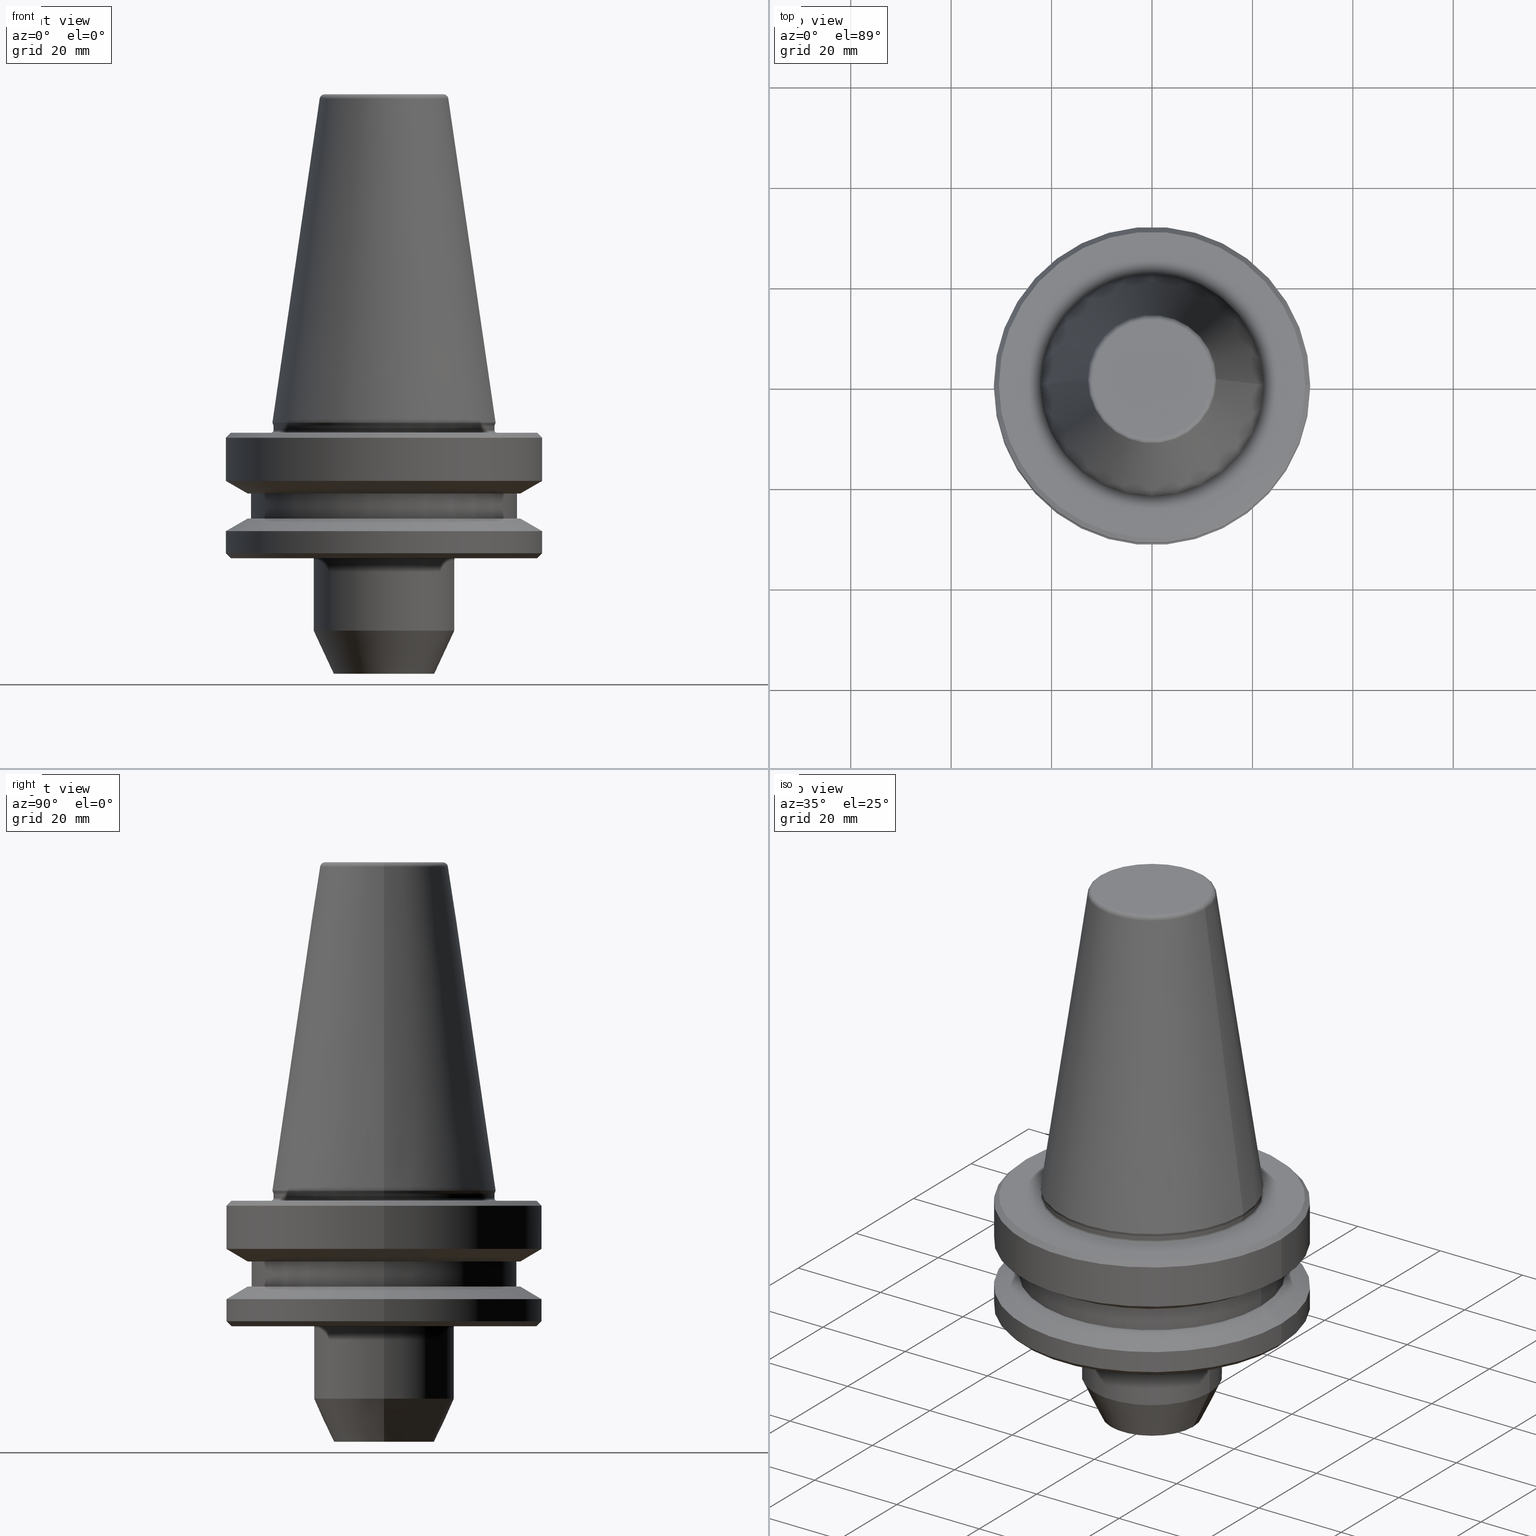
[diagram: canonical four-view strip — front | top / right | iso, engineering-drawing reading convention]
A machine part, canonical four-view strip (front | top / right | iso — engineering-drawing reading convention). The complete STEP part file that produces these views, byte-faithful:
ISO-10303-21;
HEADER;
FILE_DESCRIPTION (( 'STEP AP203' ),
    '1' );
FILE_NAME ('BT40 WE08 050 AD-6.3G15000 SL.STEP',
    '2019-05-22T07:07:57',
    ( '' ),
    ( '' ),
    'SwSTEP 2.0',
    'SolidWorks 2014',
    '' );
FILE_SCHEMA (( 'CONFIG_CONTROL_DESIGN' ));
ENDSEC;

DATA;
#1 = FACE_BOUND ( 'NONE', #987, .T. ) ;
#2 = DIRECTION ( 'NONE',  ( 1.000000000000000000, 0.0000000000000000000, 0.0000000000000000000 ) ) ;
#3 = CARTESIAN_POINT ( 'NONE',  ( 31.49999999999986100, 0.0000000000000000000, -11.59985799368423700 ) ) ;
#4 = DIRECTION ( 'NONE',  ( -1.000000000000000000, 0.0000000000000000000, 0.0000000000000000000 ) ) ;
#5 = AXIS2_PLACEMENT_3D ( 'NONE', #256, #480, #4 ) ;
#6 = DIRECTION ( 'NONE',  ( 1.000000000000000000, 0.0000000000000000000, 0.0000000000000000000 ) ) ;
#7 = ORIENTED_EDGE ( 'NONE', *, *, #241, .F. ) ;
#8 = EDGE_CURVE ( 'NONE', #332, #43, #633, .T. ) ;
#9 = FACE_OUTER_BOUND ( 'NONE', #333, .T. ) ;
#10 = EDGE_LOOP ( 'NONE', ( #470, #23, #342, #306 ) ) ;
#11 = ORIENTED_EDGE ( 'NONE', *, *, #265, .T. ) ;
#12 = CALENDAR_DATE ( 2019, 22, 5 ) ;
#13 = DIRECTION ( 'NONE',  ( 1.000000000000000000, 0.0000000000000000000, 0.0000000000000000000 ) ) ;
#14 = ORIENTED_EDGE ( 'NONE', *, *, #255, .F. ) ;
#15 = AXIS2_PLACEMENT_3D ( 'NONE', #873, #611, #204 ) ;
#16 = CIRCLE ( 'NONE', #254, 31.49999999999986100 ) ;
#17 = CARTESIAN_POINT ( 'NONE',  ( 0.0000000000000000000, 0.0000000000000000000, -0.5519051543299569000 ) ) ;
#18 = DIRECTION ( 'NONE',  ( 0.0000000000000000000, 0.0000000000000000000, 1.000000000000000000 ) ) ;
#19 = ADVANCED_FACE ( 'NONE', ( #667 ), #974, .T. ) ;
#20 = DIRECTION ( 'NONE',  ( -0.0000000000000000000, -0.0000000000000000000, 1.000000000000000000 ) ) ;
#21 = CARTESIAN_POINT ( 'NONE',  ( 31.49999999999986100, 0.0000000000000000000, -21.60014200631776800 ) ) ;
#22 = EDGE_CURVE ( 'NONE', #679, #608, #25, .T. ) ;
#23 = ORIENTED_EDGE ( 'NONE', *, *, #174, .T. ) ;
#24 = DIRECTION ( 'NONE',  ( -0.0000000000000000000, -0.0000000000000000000, 1.000000000000000000 ) ) ;
#25 = LINE ( 'NONE', #258, #659 ) ;
#26 = ORIENTED_EDGE ( 'NONE', *, *, #424, .T. ) ;
#27 = ORIENTED_EDGE ( 'NONE', *, *, #739, .F. ) ;
#28 = CARTESIAN_POINT ( 'NONE',  ( -31.49999999999986100, 0.0000000000000000000, -21.60014200631776800 ) ) ;
#29 = CIRCLE ( 'NONE', #302, 27.16962701892278200 ) ;
#30 = VECTOR ( 'NONE', #670, 1000.000000000000000 ) ;
#31 = CIRCLE ( 'NONE', #882, 12.81220206925770500 ) ;
#32 = CIRCLE ( 'NONE', #993, 12.81220206925770500 ) ;
#33 = PLANE ( 'NONE',  #323 ) ;
#34 = AXIS2_PLACEMENT_3D ( 'NONE', #540, #91, #185 ) ;
#35 = VECTOR ( 'NONE', #95, 999.9999999999998900 ) ;
#36 = CARTESIAN_POINT ( 'NONE',  ( 21.99999999999974100, 0.0000000000000000000, -1.500000000000612000 ) ) ;
#37 = CARTESIAN_POINT ( 'NONE',  ( 0.0000000000000000000, 0.0000000000000000000, 5.551115123125782700E-013 ) ) ;
#38 = ADVANCED_FACE ( 'NONE', ( #484 ), #46, .T. ) ;
#39 = CARTESIAN_POINT ( 'NONE',  ( 0.0000000000000000000, 0.0000000000000000000, 119.1156155462287700 ) ) ;
#40 = PERSON_AND_ORGANIZATION_ROLE ( 'design_owner' ) ;
#41 = VERTEX_POINT ( 'NONE', #765 ) ;
#42 = EDGE_LOOP ( 'NONE', ( #999, #571 ) ) ;
#43 = VERTEX_POINT ( 'NONE', #590 ) ;
#44 = PERSON_AND_ORGANIZATION ( #240, #355 ) ;
#45 = DIRECTION ( 'NONE',  ( 1.000000000000000000, 0.0000000000000000000, 0.0000000000000000000 ) ) ;
#46 = CYLINDRICAL_SURFACE ( 'NONE', #466, 13.99999999999845800 ) ;
#47 = DIRECTION ( 'NONE',  ( -0.0000000000000000000, -0.0000000000000000000, 1.000000000000000000 ) ) ;
#48 = DIRECTION ( 'NONE',  ( 0.0000000000000000000, 0.0000000000000000000, -1.000000000000000000 ) ) ;
#49 = DIRECTION ( 'NONE',  ( -1.000000000000000000, 0.0000000000000000000, 0.0000000000000000000 ) ) ;
#50 = DIRECTION ( 'NONE',  ( 1.000000000000000000, 0.0000000000000000000, 0.0000000000000000000 ) ) ;
#51 = CARTESIAN_POINT ( 'NONE',  ( 0.0000000000000000000, 0.0000000000000000000, -0.6887132116605299000 ) ) ;
#52 = AXIS2_PLACEMENT_3D ( 'NONE', #700, #732, #714 ) ;
#53 = CARTESIAN_POINT ( 'NONE',  ( 0.0000000000000000000, 0.0000000000000000000, -50.00000000010052000 ) ) ;
#54 = EDGE_LOOP ( 'NONE', ( #364, #644, #147, #309 ) ) ;
#55 = ORIENTED_EDGE ( 'NONE', *, *, #582, .F. ) ;
#56 = EDGE_LOOP ( 'NONE', ( #534, #435, #772, #202 ) ) ;
#57 = FACE_OUTER_BOUND ( 'NONE', #177, .T. ) ;
#58 = CARTESIAN_POINT ( 'NONE',  ( 0.0000000000000000000, 0.0000000000000000000, -1.500000000000612000 ) ) ;
#59 = DIRECTION ( 'NONE',  ( 1.000000000000000000, 0.0000000000000000000, 0.0000000000000000000 ) ) ;
#60 = CARTESIAN_POINT ( 'NONE',  ( -22.22500000000038500, 2.721777511105039400E-015, 5.551115123125782700E-013 ) ) ;
#61 = ORIENTED_EDGE ( 'NONE', *, *, #528, .F. ) ;
#62 = AXIS2_PLACEMENT_3D ( 'NONE', #184, #217, #769 ) ;
#63 = DIRECTION ( 'NONE',  ( -1.000000000000000000, 0.0000000000000000000, -0.0000000000000000000 ) ) ;
#64 = VERTEX_POINT ( 'NONE', #155 ) ;
#65 = ORIENTED_EDGE ( 'NONE', *, *, #523, .T. ) ;
#66 = COORDINATED_UNIVERSAL_TIME_OFFSET ( 5, 30, .AHEAD. ) ;
#67 = CARTESIAN_POINT ( 'NONE',  ( 0.0000000000000000000, 0.0000000000000000000, -21.60014200631776800 ) ) ;
#68 = VERTEX_POINT ( 'NONE', #186 ) ;
#69 = DIRECTION ( 'NONE',  ( -0.0000000000000000000, -0.0000000000000000000, 1.000000000000000000 ) ) ;
#70 = CIRCLE ( 'NONE', #901, 31.49999999999986100 ) ;
#71 = DIRECTION ( 'NONE',  ( -0.0000000000000000000, -0.0000000000000000000, 1.000000000000000000 ) ) ;
#72 = CARTESIAN_POINT ( 'NONE',  ( -30.49999999999930400, 3.735172737399342300E-015, -27.00000000000113300 ) ) ;
#73 = DIRECTION ( 'NONE',  ( 1.224646799147353200E-016, 1.000000000000000000, 0.0000000000000000000 ) ) ;
#74 = CARTESIAN_POINT ( 'NONE',  ( 0.0000000000000000000, 0.0000000000000000000, -27.00000000000113300 ) ) ;
#75 = VERTEX_POINT ( 'NONE', #749 ) ;
#76 = VERTEX_POINT ( 'NONE', #60 ) ;
#77 = FACE_OUTER_BOUND ( 'NONE', #42, .T. ) ;
#78 = CARTESIAN_POINT ( 'NONE',  ( -26.49999999999996800, 3.245314017740481800E-015, -14.10000000000055600 ) ) ;
#79 = ADVANCED_FACE ( 'NONE', ( #855 ), #199, .F. ) ;
#80 = LINE ( 'NONE', #622, #547 ) ;
#81 = DIRECTION ( 'NONE',  ( -0.0000000000000000000, -0.0000000000000000000, 1.000000000000000000 ) ) ;
#82 = DIRECTION ( 'NONE',  ( -1.000000000000000000, 0.0000000000000000000, -0.0000000000000000000 ) ) ;
#83 = CARTESIAN_POINT ( 'NONE',  ( 0.0000000000000000000, 0.0000000000000000000, -2.000000000000667900 ) ) ;
#84 = EDGE_CURVE ( 'NONE', #235, #774, #221, .T. ) ;
#85 = CARTESIAN_POINT ( 'NONE',  ( -22.02412295168550900, 2.697177167680941300E-015, -0.5519051543299569000 ) ) ;
#86 = EDGE_CURVE ( 'NONE', #630, #780, #215, .T. ) ;
#87 = CARTESIAN_POINT ( 'NONE',  ( 31.49999999999986100, 3.857637417314145300E-015, -3.000000000000779800 ) ) ;
#88 = CARTESIAN_POINT ( 'NONE',  ( 13.99999999999845800, 0.0000000000000000000, 119.1156155462287700 ) ) ;
#89 = ADVANCED_FACE ( 'NONE', ( #647 ), #336, .T. ) ;
#90 = VERTEX_POINT ( 'NONE', #143 ) ;
#91 = DIRECTION ( 'NONE',  ( 0.0000000000000000000, -0.0000000000000000000, 1.000000000000000000 ) ) ;
#92 = FACE_BOUND ( 'NONE', #373, .T. ) ;
#93 = LOCAL_TIME ( 12, 37, 57.00000000000000000, #310 ) ;
#94 = DIRECTION ( 'NONE',  ( 1.000000000000000000, 0.0000000000000000000, 0.0000000000000000000 ) ) ;
#95 = DIRECTION ( 'NONE',  ( 0.8660254037844377100, 1.060575238724905700E-016, -0.5000000000000017800 ) ) ;
#96 = DIRECTION ( 'NONE',  ( -0.0000000000000000000, -0.0000000000000000000, 1.000000000000000000 ) ) ;
#97 = FACE_BOUND ( 'NONE', #583, .T. ) ;
#98 = VERTEX_POINT ( 'NONE', #510 ) ;
#99 = VECTOR ( 'NONE', #744, 1000.000000000000000 ) ;
#100 = EDGE_LOOP ( 'NONE', ( #7, #778, #933, #573 ) ) ;
#101 = PRODUCT_DEFINITION_FORMATION_WITH_SPECIFIED_SOURCE ( 'ANY', '', #864, .NOT_KNOWN. ) ;
#102 = AXIS2_PLACEMENT_3D ( 'NONE', #477, #872, #338 ) ;
#103 = FACE_OUTER_BOUND ( 'NONE', #100, .T. ) ;
#104 = PERSON_AND_ORGANIZATION_ROLE ( 'creator' ) ;
#105 = APPLICATION_CONTEXT ( 'configuration controlled 3d designs of mechanical parts and assemblies' ) ;
#106 = DIRECTION ( 'NONE',  ( 1.000000000000000000, 0.0000000000000000000, 0.0000000000000000000 ) ) ;
#107 = ORIENTED_EDGE ( 'NONE', *, *, #508, .F. ) ;
#108 = ORIENTED_EDGE ( 'NONE', *, *, #113, .T. ) ;
#109 = ADVANCED_FACE ( 'NONE', ( #559 ), #694, .F. ) ;
#110 = EDGE_LOOP ( 'NONE', ( #134, #124, #782, #572 ) ) ;
#111 = CALENDAR_DATE ( 2019, 22, 5 ) ;
#112 = DIRECTION ( 'NONE',  ( -1.000000000000000000, 0.0000000000000000000, 0.0000000000000000000 ) ) ;
#113 = EDGE_CURVE ( 'NONE', #444, #595, #188, .T. ) ;
#114 = ADVANCED_FACE ( 'NONE', ( #146 ), #683, .T. ) ;
#115 = LINE ( 'NONE', #339, #960 ) ;
#116 = EDGE_CURVE ( 'NONE', #235, #997, #341, .T. ) ;
#117 = AXIS2_PLACEMENT_3D ( 'NONE', #733, #331, #458 ) ;
#118 = APPROVAL ( #587, 'UNSPECIFIED' ) ;
#119 = DIRECTION ( 'NONE',  ( 1.000000000000000000, 0.0000000000000000000, 0.0000000000000000000 ) ) ;
#120 = ORIENTED_EDGE ( 'NONE', *, *, #8, .T. ) ;
#121 = ORIENTED_EDGE ( 'NONE', *, *, #476, .F. ) ;
#122 = CARTESIAN_POINT ( 'NONE',  ( 22.02412295168550900, 0.0000000000000000000, -0.5519051543299569000 ) ) ;
#123 = ORIENTED_EDGE ( 'NONE', *, *, #615, .F. ) ;
#124 = ORIENTED_EDGE ( 'NONE', *, *, #728, .T. ) ;
#125 = DATE_TIME_ROLE ( 'classification_date' ) ;
#126 = AXIS2_PLACEMENT_3D ( 'NONE', #921, #593, #941 ) ;
#127 = VECTOR ( 'NONE', #929, 1000.000000000000100 ) ;
#128 = CIRCLE ( 'NONE', #410, 30.49999999999930400 ) ;
#129 = CARTESIAN_POINT ( 'NONE',  ( 30.49999999999930400, 0.0000000000000000000, -27.00000000000113300 ) ) ;
#130 = DIRECTION ( 'NONE',  ( 1.000000000000000000, 0.0000000000000000000, 0.0000000000000000000 ) ) ;
#131 = ADVANCED_FACE ( 'NONE', ( #971 ), #356, .T. ) ;
#132 = CC_DESIGN_SECURITY_CLASSIFICATION ( #837, ( #101 ) ) ;
#133 = DIRECTION ( 'NONE',  ( -1.000000000000000000, 1.224646799147344300E-016, 0.0000000000000000000 ) ) ;
#134 = ORIENTED_EDGE ( 'NONE', *, *, #265, .F. ) ;
#135 = AXIS2_PLACEMENT_3D ( 'NONE', #532, #47, #313 ) ;
#136 = EDGE_CURVE ( 'NONE', #75, #437, #219, .T. ) ;
#137 = EDGE_LOOP ( 'NONE', ( #853, #544, #538, #905 ) ) ;
#138 = ORIENTED_EDGE ( 'NONE', *, *, #783, .T. ) ;
#139 = PERSON_AND_ORGANIZATION ( #240, #355 ) ;
#140 = DIRECTION ( 'NONE',  ( 1.000000000000000000, 0.0000000000000000000, 0.0000000000000000000 ) ) ;
#141 = FACE_OUTER_BOUND ( 'NONE', #609, .T. ) ;
#142 = DIRECTION ( 'NONE',  ( 1.000000000000000000, 0.0000000000000000000, 0.0000000000000000000 ) ) ;
#143 = CARTESIAN_POINT ( 'NONE',  ( 30.49999999999975100, 3.796405077356771400E-015, -2.000000000000667900 ) ) ;
#144 = DIRECTION ( 'NONE',  ( -0.0000000000000000000, -0.0000000000000000000, 1.000000000000000000 ) ) ;
#145 = AXIS2_PLACEMENT_3D ( 'NONE', #641, #688, #119 ) ;
#146 = FACE_OUTER_BOUND ( 'NONE', #380, .T. ) ;
#147 = ORIENTED_EDGE ( 'NONE', *, *, #226, .F. ) ;
#148 = ORIENTED_EDGE ( 'NONE', *, *, #877, .T. ) ;
#149 = CIRCLE ( 'NONE', #779, 0.3999999999999975800 ) ;
#150 = CARTESIAN_POINT ( 'NONE',  ( 0.0000000000000000000, 0.0000000000000000000, -14.10000000000055600 ) ) ;
#151 = PERSON_AND_ORGANIZATION_ROLE ( 'classification_officer' ) ;
#152 = AXIS2_PLACEMENT_3D ( 'NONE', #607, #81, #589 ) ;
#153 = LINE ( 'NONE', #870, #35 ) ;
#154 = ADVANCED_FACE ( 'NONE', ( #968 ), #880, .T. ) ;
#155 = CARTESIAN_POINT ( 'NONE',  ( 21.99999999999979700, 0.0000000000000000000, -0.6887132116605299000 ) ) ;
#156 = AXIS2_PLACEMENT_3D ( 'NONE', #720, #378, #2 ) ;
#157 = CARTESIAN_POINT ( 'NONE',  ( -31.49999999999986100, 3.857637417314145300E-015, 119.1156155462287700 ) ) ;
#158 = EDGE_CURVE ( 'NONE', #43, #332, #347, .T. ) ;
#159 = LINE ( 'NONE', #601, #506 ) ;
#160 = SECURITY_CLASSIFICATION_LEVEL ( 'unclassified' ) ;
#161 = AXIS2_PLACEMENT_3D ( 'NONE', #482, #535, #176 ) ;
#162 = EDGE_LOOP ( 'NONE', ( #459, #123, #631, #784 ) ) ;
#163 = FACE_OUTER_BOUND ( 'NONE', #282, .T. ) ;
#164 = EDGE_LOOP ( 'NONE', ( #896, #353, #189, #511 ) ) ;
#165 = APPROVAL ( #860, 'UNSPECIFIED' ) ;
#166 = EDGE_LOOP ( 'NONE', ( #216, #813, #490, #697 ) ) ;
#167 = ORIENTED_EDGE ( 'NONE', *, *, #241, .T. ) ;
#168 = LINE ( 'NONE', #949, #127 ) ;
#169 = DIRECTION ( 'NONE',  ( 1.000000000000000000, 0.0000000000000000000, 0.0000000000000000000 ) ) ;
#170 = PLANE ( 'NONE',  #52 ) ;
#171 = LINE ( 'NONE', #88, #995 ) ;
#172 = CARTESIAN_POINT ( 'NONE',  ( -27.16962701892278200, 3.592478546794634700E-015, -14.10000000000055600 ) ) ;
#173 = CARTESIAN_POINT ( 'NONE',  ( 22.49999999999974400, 0.0000000000000000000, -2.000000000000640400 ) ) ;
#174 = EDGE_CURVE ( 'NONE', #669, #401, #959, .T. ) ;
#175 = EDGE_LOOP ( 'NONE', ( #835, #536 ) ) ;
#176 = DIRECTION ( 'NONE',  ( 1.000000000000000000, 0.0000000000000000000, 0.0000000000000000000 ) ) ;
#177 = EDGE_LOOP ( 'NONE', ( #120, #354, #944, #646 ) ) ;
#178 = ORIENTED_EDGE ( 'NONE', *, *, #964, .T. ) ;
#179 = AXIS2_PLACEMENT_3D ( 'NONE', #465, #96, #468 ) ;
#180 = EDGE_CURVE ( 'NONE', #760, #64, #915, .T. ) ;
#181 = CARTESIAN_POINT ( 'NONE',  ( 0.0000000000000000000, 0.0000000000000000000, 65.39999999999979300 ) ) ;
#182 = DIRECTION ( 'NONE',  ( 1.000000000000000000, 0.0000000000000000000, 0.0000000000000000000 ) ) ;
#183 = ADVANCED_FACE ( 'NONE', ( #807 ), #699, .T. ) ;
#184 = CARTESIAN_POINT ( 'NONE',  ( 0.0000000000000000000, 0.0000000000000000000, -14.10000000000055600 ) ) ;
#185 = DIRECTION ( 'NONE',  ( 1.000000000000000000, 0.0000000000000000000, 0.0000000000000000000 ) ) ;
#186 = CARTESIAN_POINT ( 'NONE',  ( -13.99999999999845800, 1.714505518806105700E-015, -27.00000000000113300 ) ) ;
#187 = DIRECTION ( 'NONE',  ( -0.0000000000000000000, -0.0000000000000000000, 1.000000000000000000 ) ) ;
#188 = CIRCLE ( 'NONE', #102, 11.82266927716796300 ) ;
#189 = ORIENTED_EDGE ( 'NONE', *, *, #707, .T. ) ;
#190 = AXIS2_PLACEMENT_3D ( 'NONE', #919, #989, #182 ) ;
#191 = EDGE_CURVE ( 'NONE', #845, #997, #752, .T. ) ;
#192 = APPROVAL_ROLE ( '' ) ;
#193 = ADVANCED_FACE ( 'NONE', ( #787 ), #479, .T. ) ;
#194 = CIRCLE ( 'NONE', #253, 27.16962701892206100 ) ;
#195 = DIRECTION ( 'NONE',  ( 0.4226182617407107700, 0.0000000000000000000, 0.9063077870366446100 ) ) ;
#196 = ADVANCED_FACE ( 'NONE', ( #797 ), #405, .T. ) ;
#197 = ORIENTED_EDGE ( 'NONE', *, *, #751, .F. ) ;
#198 = DIRECTION ( 'NONE',  ( -0.7071067811865474600, 0.0000000000000000000, -0.7071067811865475700 ) ) ;
#199 = TOROIDAL_SURFACE ( 'NONE', #366, 22.39999999999975300, 0.3999999999999959700 ) ;
#200 = ORIENTED_EDGE ( 'NONE', *, *, #579, .F. ) ;
#201 = COORDINATED_UNIVERSAL_TIME_OFFSET ( 5, 30, .AHEAD. ) ;
#202 = ORIENTED_EDGE ( 'NONE', *, *, #381, .T. ) ;
#203 = DIRECTION ( 'NONE',  ( 1.224646799147353200E-016, 1.000000000000000000, 0.0000000000000000000 ) ) ;
#204 = DIRECTION ( 'NONE',  ( 1.000000000000000000, 0.0000000000000000000, 0.0000000000000000000 ) ) ;
#205 = ADVANCED_FACE ( 'NONE', ( #504 ), #377, .T. ) ;
#206 = EDGE_CURVE ( 'NONE', #446, #76, #417, .T. ) ;
#207 = FACE_OUTER_BOUND ( 'NONE', #643, .T. ) ;
#208 = PERSON_AND_ORGANIZATION_ROLE ( 'creator' ) ;
#209 = EDGE_CURVE ( 'NONE', #847, #260, #613, .T. ) ;
#210 = APPROVAL_STATUS ( 'not_yet_approved' ) ;
#211 = DIRECTION ( 'NONE',  ( -0.0000000000000000000, -0.0000000000000000000, 1.000000000000000000 ) ) ;
#212 = EDGE_CURVE ( 'NONE', #332, #98, #389, .T. ) ;
#213 = ORIENTED_EDGE ( 'NONE', *, *, #552, .T. ) ;
#214 = EDGE_CURVE ( 'NONE', #680, #41, #494, .T. ) ;
#215 = LINE ( 'NONE', #129, #30 ) ;
#216 = ORIENTED_EDGE ( 'NONE', *, *, #615, .T. ) ;
#217 = DIRECTION ( 'NONE',  ( -0.0000000000000000000, -0.0000000000000000000, 1.000000000000000000 ) ) ;
#218 = CIRCLE ( 'NONE', #443, 0.3999999999999958600 ) ;
#219 = CIRCLE ( 'NONE', #822, 27.16962701892206100 ) ;
#220 = ORIENTED_EDGE ( 'NONE', *, *, #598, .T. ) ;
#221 = CIRCLE ( 'NONE', #312, 21.99999999999974100 ) ;
#222 = CYLINDRICAL_SURFACE ( 'NONE', #816, 31.49999999999986100 ) ;
#223 = CARTESIAN_POINT ( 'NONE',  ( -22.49999999999974400, 2.755455298081513200E-015, -1.500000000000612000 ) ) ;
#224 = VECTOR ( 'NONE', #454, 1000.000000000000200 ) ;
#225 = VECTOR ( 'NONE', #298, 1000.000000000000000 ) ;
#226 = EDGE_CURVE ( 'NONE', #273, #68, #649, .T. ) ;
#227 = DIRECTION ( 'NONE',  ( 1.000000000000000000, 0.0000000000000000000, 0.0000000000000000000 ) ) ;
#228 = DIRECTION ( 'NONE',  ( -0.0000000000000000000, -0.0000000000000000000, 1.000000000000000000 ) ) ;
#229 = ORIENTED_EDGE ( 'NONE', *, *, #579, .T. ) ;
#230 = FACE_OUTER_BOUND ( 'NONE', #794, .T. ) ;
#231 = EDGE_CURVE ( 'NONE', #852, #980, #299, .T. ) ;
#232 = ORIENTED_EDGE ( 'NONE', *, *, #209, .T. ) ;
#233 = ADVANCED_FACE ( 'NONE', ( #324, #207 ), #33, .F. ) ;
#234 = LOCAL_TIME ( 12, 37, 57.00000000000000000, #436 ) ;
#235 = VERTEX_POINT ( 'NONE', #869 ) ;
#236 = DIRECTION ( 'NONE',  ( -0.1443081888881831700, 0.0000000000000000000, -0.9895327920891821000 ) ) ;
#238 = DIRECTION ( 'NONE',  ( 0.1443081888881831700, 1.767265616126651700E-017, -0.9895327920891821000 ) ) ;
#237 = FACE_OUTER_BOUND ( 'NONE', #426, .T. ) ;
#239 = EDGE_CURVE ( 'NONE', #397, #680, #168, .T. ) ;
#240 = PERSON ( 'UNSPECIFIED', 'UNSPECIFIED', 'UNSPECIFIED', ('UNSPECIFIED'), ('UNSPECIFIED'), ('UNSPECIFIED') ) ;
#241 = EDGE_CURVE ( 'NONE', #437, #75, #194, .T. ) ;
#242 = DIRECTION ( 'NONE',  ( 1.000000000000000000, 0.0000000000000000000, 0.0000000000000000000 ) ) ;
#243 = CONICAL_SURFACE ( 'NONE', #567, 31.49999999999986100, 1.047197551196595600 ) ;
#244 = CARTESIAN_POINT ( 'NONE',  ( 0.0000000000000000000, 0.0000000000000000000, -0.5519051543299569000 ) ) ;
#245 = ORIENTED_EDGE ( 'NONE', *, *, #705, .T. ) ;
#246 = ADVANCED_FACE ( 'NONE', ( #141 ), #252, .F. ) ;
#247 = ORIENTED_EDGE ( 'NONE', *, *, #565, .T. ) ;
#248 = CIRCLE ( 'NONE', #369, 21.99999999999974100 ) ;
#249 = CYLINDRICAL_SURFACE ( 'NONE', #821, 26.49999999999996800 ) ;
#250 = LINE ( 'NONE', #584, #311 ) ;
#251 = DIRECTION ( 'NONE',  ( 1.000000000000000000, 0.0000000000000000000, 0.0000000000000000000 ) ) ;
#252 = TOROIDAL_SURFACE ( 'NONE', #651, 22.39999999999975300, 0.3999999999999959700 ) ;
#253 = AXIS2_PLACEMENT_3D ( 'NONE', #824, #838, #902 ) ;
#254 = AXIS2_PLACEMENT_3D ( 'NONE', #947, #763, #525 ) ;
#255 = EDGE_CURVE ( 'NONE', #680, #679, #70, .T. ) ;
#256 = CARTESIAN_POINT ( 'NONE',  ( 0.0000000000000000000, 0.0000000000000000000, -21.60014200631776800 ) ) ;
#257 = DIRECTION ( 'NONE',  ( 1.000000000000000000, 0.0000000000000000000, 0.0000000000000000000 ) ) ;
#258 = CARTESIAN_POINT ( 'NONE',  ( -31.49999999999986100, 3.857637417314145300E-015, 119.1156155462287700 ) ) ;
#259 = PRODUCT_DEFINITION ( 'UNKNOWN', '', #101, #408 ) ;
#260 = VERTEX_POINT ( 'NONE', #513 ) ;
#261 = TOROIDAL_SURFACE ( 'NONE', #656, 11.82266927716790800, 1.000000000000371300 ) ;
#262 = AXIS2_PLACEMENT_3D ( 'NONE', #979, #203, #830 ) ;
#263 = APPROVAL_DATE_TIME ( #463, #118 ) ;
#264 = ORIENTED_EDGE ( 'NONE', *, *, #964, .F. ) ;
#265 = EDGE_CURVE ( 'NONE', #585, #446, #32, .T. ) ;
#266 = DIRECTION ( 'NONE',  ( -0.0000000000000000000, -0.0000000000000000000, 1.000000000000000000 ) ) ;
#267 = CARTESIAN_POINT ( 'NONE',  ( 0.0000000000000000000, 0.0000000000000000000, -27.00000000000113300 ) ) ;
#268 = UNCERTAINTY_MEASURE_WITH_UNIT (LENGTH_MEASURE( 1.000000000000000100E-005 ), #416, 'distance_accuracy_value', 'NONE');
#269 = ORIENTED_EDGE ( 'NONE', *, *, #767, .T. ) ;
#270 = DIRECTION ( 'NONE',  ( -0.0000000000000000000, -0.0000000000000000000, 1.000000000000000000 ) ) ;
#271 = AXIS2_PLACEMENT_3D ( 'NONE', #568, #800, #808 ) ;
#272 = ORIENTED_EDGE ( 'NONE', *, *, #626, .T. ) ;
#273 = VERTEX_POINT ( 'NONE', #660 ) ;
#274 = CIRCLE ( 'NONE', #731, 22.22500000000038500 ) ;
#275 = AXIS2_PLACEMENT_3D ( 'NONE', #703, #672, #750 ) ;
#276 = DIRECTION ( 'NONE',  ( 1.000000000000000000, 0.0000000000000000000, 0.0000000000000000000 ) ) ;
#277 = DIRECTION ( 'NONE',  ( -0.0000000000000000000, -0.0000000000000000000, 1.000000000000000000 ) ) ;
#278 = CIRCLE ( 'NONE', #560, 30.49999999999975100 ) ;
#279 = CARTESIAN_POINT ( 'NONE',  ( -12.81220206925757300, 1.569042225414538300E-015, 64.54430818888801000 ) ) ;
#280 = DIRECTION ( 'NONE',  ( 1.224646799147353200E-016, 1.000000000000000000, 0.0000000000000000000 ) ) ;
#281 = DIRECTION ( 'NONE',  ( -0.0000000000000000000, -0.0000000000000000000, 1.000000000000000000 ) ) ;
#282 = EDGE_LOOP ( 'NONE', ( #121, #65, #518, #984 ) ) ;
#283 = ORIENTED_EDGE ( 'NONE', *, *, #565, .F. ) ;
#284 = ORIENTED_EDGE ( 'NONE', *, *, #751, .T. ) ;
#285 = APPROVAL_PERSON_ORGANIZATION ( #487, #118, #192 ) ;
#286 = CARTESIAN_POINT ( 'NONE',  ( 0.0000000000000000000, 0.0000000000000000000, -3.000000000000779800 ) ) ;
#287 = DIRECTION ( 'NONE',  ( 1.000000000000000000, 0.0000000000000000000, 0.0000000000000000000 ) ) ;
#288 = CARTESIAN_POINT ( 'NONE',  ( 0.0000000000000000000, 0.0000000000000000000, -27.00000000000113300 ) ) ;
#289 = DIRECTION ( 'NONE',  ( 1.000000000000000000, 0.0000000000000000000, 0.0000000000000000000 ) ) ;
#290 = AXIS2_PLACEMENT_3D ( 'NONE', #648, #382, #820 ) ;
#291 = DIRECTION ( 'NONE',  ( 0.0000000000000000000, 0.0000000000000000000, -1.000000000000000000 ) ) ;
#292 = EDGE_CURVE ( 'NONE', #780, #401, #16, .T. ) ;
#293 = AXIS2_PLACEMENT_3D ( 'NONE', #928, #722, #937 ) ;
#294 = CARTESIAN_POINT ( 'NONE',  ( 0.0000000000000000000, 0.0000000000000000000, -1.500000000000612000 ) ) ;
#295 = CARTESIAN_POINT ( 'NONE',  ( 0.0000000000000000000, 0.0000000000000000000, -14.10000000000055600 ) ) ;
#296 = ORIENTED_EDGE ( 'NONE', *, *, #705, .F. ) ;
#297 = CARTESIAN_POINT ( 'NONE',  ( -31.49999999999986100, 3.857637417314145300E-015, -26.00000000000057900 ) ) ;
#298 = DIRECTION ( 'NONE',  ( 0.7071067811865474600, 8.659560562354931600E-017, -0.7071067811865475700 ) ) ;
#299 = LINE ( 'NONE', #122, #224 ) ;
#300 = DIRECTION ( 'NONE',  ( 1.000000000000000000, 0.0000000000000000000, 0.0000000000000000000 ) ) ;
#301 = ADVANCED_FACE ( 'NONE', ( #1, #350 ), #413, .F. ) ;
#302 = AXIS2_PLACEMENT_3D ( 'NONE', #295, #515, #50 ) ;
#303 = DIRECTION ( 'NONE',  ( -0.0000000000000000000, -0.0000000000000000000, 1.000000000000000000 ) ) ;
#304 = DIRECTION ( 'NONE',  ( -0.0000000000000000000, -0.0000000000000000000, 1.000000000000000000 ) ) ;
#305 = AXIS2_PLACEMENT_3D ( 'NONE', #223, #73, #450 ) ;
#306 = ORIENTED_EDGE ( 'NONE', *, *, #86, .F. ) ;
#307 = ORIENTED_EDGE ( 'NONE', *, *, #508, .T. ) ;
#308 = ORIENTED_EDGE ( 'NONE', *, *, #707, .F. ) ;
#309 = ORIENTED_EDGE ( 'NONE', *, *, #552, .F. ) ;
#310 = COORDINATED_UNIVERSAL_TIME_OFFSET ( 5, 30, .AHEAD. ) ;
#311 = VECTOR ( 'NONE', #881, 1000.000000000000000 ) ;
#312 = AXIS2_PLACEMENT_3D ( 'NONE', #294, #321, #227 ) ;
#313 = DIRECTION ( 'NONE',  ( 1.000000000000000000, 0.0000000000000000000, 0.0000000000000000000 ) ) ;
#314 = DIRECTION ( 'NONE',  ( -0.8660254037844377100, 0.0000000000000000000, -0.5000000000000017800 ) ) ;
#315 = DIRECTION ( 'NONE',  ( 0.0000000000000000000, -1.000000000000000000, 0.0000000000000000000 ) ) ;
#316 = DIRECTION ( 'NONE',  ( -0.0000000000000000000, -0.0000000000000000000, 1.000000000000000000 ) ) ;
#317 = CARTESIAN_POINT ( 'NONE',  ( -22.22500000000038500, 0.0000000000000000000, 5.551115123125782700E-013 ) ) ;
#318 = ORIENTED_EDGE ( 'NONE', *, *, #603, .F. ) ;
#319 = VERTEX_POINT ( 'NONE', #976 ) ;
#320 = FACE_OUTER_BOUND ( 'NONE', #137, .T. ) ;
#321 = DIRECTION ( 'NONE',  ( -0.0000000000000000000, -0.0000000000000000000, 1.000000000000000000 ) ) ;
#322 = DIRECTION ( 'NONE',  ( -0.0000000000000000000, -0.0000000000000000000, 1.000000000000000000 ) ) ;
#323 = AXIS2_PLACEMENT_3D ( 'NONE', #734, #899, #82 ) ;
#324 = FACE_BOUND ( 'NONE', #912, .T. ) ;
#325 = CARTESIAN_POINT ( 'NONE',  ( 0.0000000000000000000, 0.0000000000000000000, 119.1156155462287700 ) ) ;
#326 = LINE ( 'NONE', #950, #549 ) ;
#327 = LINE ( 'NONE', #932, #379 ) ;
#328 = CARTESIAN_POINT ( 'NONE',  ( 0.0000000000000000000, 26.49999999999996800, -19.10000000000100300 ) ) ;
#329 = AXIS2_PLACEMENT_3D ( 'NONE', #17, #421, #958 ) ;
#330 = AXIS2_PLACEMENT_3D ( 'NONE', #895, #710, #368 ) ;
#331 = DIRECTION ( 'NONE',  ( -0.0000000000000000000, -0.0000000000000000000, 1.000000000000000000 ) ) ;
#332 = VERTEX_POINT ( 'NONE', #661 ) ;
#333 = EDGE_LOOP ( 'NONE', ( #557, #924, #447, #886 ) ) ;
#334 = CARTESIAN_POINT ( 'NONE',  ( 11.82266927716796300, 0.0000000000000000000, 65.39999999999979300 ) ) ;
#335 = LOCAL_TIME ( 12, 37, 57.00000000000000000, #537 ) ;
#336 = CONICAL_SURFACE ( 'NONE', #346, 31.49999999999986100, 0.7853981633974482800 ) ;
#337 = DIRECTION ( 'NONE',  ( -0.0000000000000000000, -0.0000000000000000000, 1.000000000000000000 ) ) ;
#338 = DIRECTION ( 'NONE',  ( 1.000000000000000000, 0.0000000000000000000, 0.0000000000000000000 ) ) ;
#339 = CARTESIAN_POINT ( 'NONE',  ( 9.999999999998399500, 0.0000000000000000000, -50.00000000010052000 ) ) ;
#340 = DIRECTION ( 'NONE',  ( -0.0000000000000000000, -0.0000000000000000000, 1.000000000000000000 ) ) ;
#341 = CIRCLE ( 'NONE', #305, 0.5000000000000004400 ) ;
#342 = ORIENTED_EDGE ( 'NONE', *, *, #292, .F. ) ;
#343 = VERTEX_POINT ( 'NONE', #556 ) ;
#344 = EDGE_LOOP ( 'NONE', ( #771, #485, #213, #462 ) ) ;
#345 = DIRECTION ( 'NONE',  ( -0.0000000000000000000, -0.0000000000000000000, 1.000000000000000000 ) ) ;
#346 = AXIS2_PLACEMENT_3D ( 'NONE', #832, #825, #955 ) ;
#347 = CIRCLE ( 'NONE', #15, 26.49999999999996800 ) ;
#348 = VECTOR ( 'NONE', #992, 1000.000000000000000 ) ;
#349 = DIRECTION ( 'NONE',  ( 0.0000000000000000000, 0.0000000000000000000, -1.000000000000000000 ) ) ;
#350 = FACE_OUTER_BOUND ( 'NONE', #520, .T. ) ;
#351 = AXIS2_PLACEMENT_3D ( 'NONE', #713, #548, #727 ) ;
#352 = DIRECTION ( 'NONE',  ( -0.0000000000000000000, -0.0000000000000000000, 1.000000000000000000 ) ) ;
#353 = ORIENTED_EDGE ( 'NONE', *, *, #116, .T. ) ;
#354 = ORIENTED_EDGE ( 'NONE', *, *, #662, .T. ) ;
#355 = ORGANIZATION ( 'UNSPECIFIED', 'UNSPECIFIED', '' ) ;
#356 = CYLINDRICAL_SURFACE ( 'NONE', #891, 31.49999999999986100 ) ;
#357 = FACE_OUTER_BOUND ( 'NONE', #866, .T. ) ;
#358 = CIRCLE ( 'NONE', #685, 22.49999999999974400 ) ;
#359 = CARTESIAN_POINT ( 'NONE',  ( 0.0000000000000000000, 0.0000000000000000000, 119.1156155462287700 ) ) ;
#360 = AXIS2_PLACEMENT_3D ( 'NONE', #460, #913, #276 ) ;
#361 = ADVANCED_FACE ( 'NONE', ( #453 ), #602, .T. ) ;
#362 = DIRECTION ( 'NONE',  ( -0.0000000000000000000, -0.0000000000000000000, 1.000000000000000000 ) ) ;
#363 = ORIENTED_EDGE ( 'NONE', *, *, #180, .T. ) ;
#364 = ORIENTED_EDGE ( 'NONE', *, *, #541, .T. ) ;
#365 = CC_DESIGN_APPROVAL ( #118, ( #101 ) ) ;
#366 = AXIS2_PLACEMENT_3D ( 'NONE', #51, #270, #718 ) ;
#367 = AXIS2_PLACEMENT_3D ( 'NONE', #481, #457, #112 ) ;
#368 = DIRECTION ( 'NONE',  ( 1.000000000000000000, 0.0000000000000000000, 0.0000000000000000000 ) ) ;
#369 = AXIS2_PLACEMENT_3D ( 'NONE', #58, #322, #819 ) ;
#370 = DIRECTION ( 'NONE',  ( -0.0000000000000000000, -0.0000000000000000000, 1.000000000000000000 ) ) ;
#371 = ORIENTED_EDGE ( 'NONE', *, *, #799, .T. ) ;
#372 = DIRECTION ( 'NONE',  ( 1.000000000000000000, 0.0000000000000000000, 0.0000000000000000000 ) ) ;
#373 = EDGE_LOOP ( 'NONE', ( #817, #26 ) ) ;
#374 = CARTESIAN_POINT ( 'NONE',  ( 0.0000000000000000000, 0.0000000000000000000, -19.10000000000100300 ) ) ;
#375 = DIRECTION ( 'NONE',  ( -0.0000000000000000000, -0.0000000000000000000, 1.000000000000000000 ) ) ;
#376 = CC_DESIGN_DATE_AND_TIME_ASSIGNMENT ( #818, #125, ( #837 ) ) ;
#377 = CONICAL_SURFACE ( 'NONE', #804, 9.999999999998399500, 0.4363323129985949300 ) ;
#378 = DIRECTION ( 'NONE',  ( -0.0000000000000000000, -0.0000000000000000000, 1.000000000000000000 ) ) ;
#379 = VECTOR ( 'NONE', #238, 1000.000000000000000 ) ;
#380 = EDGE_LOOP ( 'NONE', ( #107, #695, #220, #935 ) ) ;
#381 = EDGE_CURVE ( 'NONE', #76, #980, #789, .T. ) ;
#382 = DIRECTION ( 'NONE',  ( -0.0000000000000000000, -0.0000000000000000000, 1.000000000000000000 ) ) ;
#383 = VERTEX_POINT ( 'NONE', #78 ) ;
#384 = APPROVAL_DATE_TIME ( #596, #675 ) ;
#385 = ORIENTED_EDGE ( 'NONE', *, *, #214, .F. ) ;
#386 =( NAMED_UNIT ( * ) SI_UNIT ( $, .STERADIAN. ) SOLID_ANGLE_UNIT ( ) );
#387 = APPLICATION_CONTEXT ( 'configuration controlled 3d designs of mechanical parts and assemblies' ) ;
#388 = CC_DESIGN_PERSON_AND_ORGANIZATION_ASSIGNMENT ( #44, #208, ( #101 ) ) ;
#389 = LINE ( 'NONE', #467, #348 ) ;
#390 = CYLINDRICAL_SURFACE ( 'NONE', #897, 26.49999999999996800 ) ;
#391 = CARTESIAN_POINT ( 'NONE',  ( 0.0000000000000000000, 0.0000000000000000000, -41.42197231806243700 ) ) ;
#392 = CARTESIAN_POINT ( 'NONE',  ( 11.82266927716790800, 0.0000000000000000000, 64.39999999999967900 ) ) ;
#393 = CC_DESIGN_APPROVAL ( #165, ( #259 ) ) ;
#394 = LINE ( 'NONE', #157, #99 ) ;
#395 = DIRECTION ( 'NONE',  ( 1.000000000000000000, 0.0000000000000000000, 0.0000000000000000000 ) ) ;
#396 = DIRECTION ( 'NONE',  ( 0.0000000000000000000, -0.0000000000000000000, 1.000000000000000000 ) ) ;
#397 = VERTEX_POINT ( 'NONE', #988 ) ;
#398 = ORIENTED_EDGE ( 'NONE', *, *, #975, .F. ) ;
#399 = ORIENTED_EDGE ( 'NONE', *, *, #158, .F. ) ;
#400 = CONICAL_SURFACE ( 'NONE', #711, 22.22500000000038500, 0.1448138077623234400 ) ;
#401 = VERTEX_POINT ( 'NONE', #297 ) ;
#402 = CARTESIAN_POINT ( 'NONE',  ( 0.0000000000000000000, 0.0000000000000000000, 5.551115123125782700E-013 ) ) ;
#403 = CIRCLE ( 'NONE', #434, 31.49999999999986100 ) ;
#404 = FACE_OUTER_BOUND ( 'NONE', #996, .T. ) ;
#405 = CONICAL_SURFACE ( 'NONE', #788, 22.22500000000038500, 0.1448138077623234400 ) ;
#406 = EDGE_CURVE ( 'NONE', #319, #68, #990, .T. ) ;
#407 = DIRECTION ( 'NONE',  ( -0.0000000000000000000, -0.0000000000000000000, 1.000000000000000000 ) ) ;
#408 = DESIGN_CONTEXT ( 'detailed design', #387, 'design' ) ;
#409 = AXIS2_PLACEMENT_3D ( 'NONE', #735, #18, #59 ) ;
#410 = AXIS2_PLACEMENT_3D ( 'NONE', #938, #839, #885 ) ;
#411 = ORIENTED_EDGE ( 'NONE', *, *, #956, .T. ) ;
#412 = ORIENTED_EDGE ( 'NONE', *, *, #528, .T. ) ;
#413 = PLANE ( 'NONE',  #539 ) ;
#414 = APPROVAL_PERSON_ORGANIZATION ( #620, #675, #519 ) ;
#415 = ORIENTED_EDGE ( 'NONE', *, *, #440, .T. ) ;
#416 =( LENGTH_UNIT ( ) NAMED_UNIT ( * ) SI_UNIT ( .MILLI., .METRE. ) );
#417 = LINE ( 'NONE', #317, #939 ) ;
#418 = EDGE_CURVE ( 'NONE', #679, #680, #829, .T. ) ;
#419 = DIRECTION ( 'NONE',  ( 0.0000000000000000000, 0.0000000000000000000, -1.000000000000000000 ) ) ;
#420 = DIRECTION ( 'NONE',  ( -1.000000000000000000, 0.0000000000000000000, 0.0000000000000000000 ) ) ;
#421 = DIRECTION ( 'NONE',  ( -0.0000000000000000000, -0.0000000000000000000, 1.000000000000000000 ) ) ;
#422 = LINE ( 'NONE', #768, #948 ) ;
#423 = ORIENTED_EDGE ( 'NONE', *, *, #86, .T. ) ;
#424 = EDGE_CURVE ( 'NONE', #68, #273, #604, .T. ) ;
#425 = EDGE_LOOP ( 'NONE', ( #629, #887, #427, #385 ) ) ;
#426 = EDGE_LOOP ( 'NONE', ( #970, #200 ) ) ;
#427 = ORIENTED_EDGE ( 'NONE', *, *, #626, .F. ) ;
#428 = DIRECTION ( 'NONE',  ( -0.0000000000000000000, -0.0000000000000000000, 1.000000000000000000 ) ) ;
#429 = CONICAL_SURFACE ( 'NONE', #5, 31.49999999999986100, 1.047197551196595600 ) ;
#430 = CYLINDRICAL_SURFACE ( 'NONE', #360, 13.99999999999845800 ) ;
#431 = CARTESIAN_POINT ( 'NONE',  ( 22.02412295168550900, 0.0000000000000000000, -0.5519051543299569000 ) ) ;
#432 = CARTESIAN_POINT ( 'NONE',  ( -31.49999999999986100, 3.857637417314145300E-015, -11.59985799368423700 ) ) ;
#433 = ORIENTED_EDGE ( 'NONE', *, *, #691, .T. ) ;
#434 = AXIS2_PLACEMENT_3D ( 'NONE', #286, #428, #1001 ) ;
#435 = ORIENTED_EDGE ( 'NONE', *, *, #767, .F. ) ;
#436 = COORDINATED_UNIVERSAL_TIME_OFFSET ( 5, 30, .AHEAD. ) ;
#437 = VERTEX_POINT ( 'NONE', #741 ) ;
#438 = DIRECTION ( 'NONE',  ( -0.0000000000000000000, -0.0000000000000000000, 1.000000000000000000 ) ) ;
#439 = CIRCLE ( 'NONE', #126, 27.16962701892278200 ) ;
#440 = EDGE_CURVE ( 'NONE', #260, #758, #115, .T. ) ;
#441 = DIRECTION ( 'NONE',  ( 1.000000000000000000, 0.0000000000000000000, 0.0000000000000000000 ) ) ;
#442 = DIRECTION ( 'NONE',  ( -0.3420201433263813100, 4.188538737685719200E-017, 0.9396926207856489700 ) ) ;
#443 = AXIS2_PLACEMENT_3D ( 'NONE', #627, #810, #809 ) ;
#444 = VERTEX_POINT ( 'NONE', #334 ) ;
#445 = DIRECTION ( 'NONE',  ( 1.000000000000000000, 0.0000000000000000000, 0.0000000000000000000 ) ) ;
#446 = VERTEX_POINT ( 'NONE', #279 ) ;
#447 = ORIENTED_EDGE ( 'NONE', *, *, #673, .T. ) ;
#448 = PLANE ( 'NONE',  #34 ) ;
#449 = FACE_OUTER_BOUND ( 'NONE', #791, .T. ) ;
#450 = DIRECTION ( 'NONE',  ( -1.000000000000000000, 1.224646799147349500E-016, 0.0000000000000000000 ) ) ;
#451 = PLANE ( 'NONE',  #576 ) ;
#452 = ADVANCED_BREP_SHAPE_REPRESENTATION ( 'BT40 WE08 050 AD-6.3G15000 SL', ( #624, #409 ), #530 ) ;
#453 = FACE_OUTER_BOUND ( 'NONE', #166, .T. ) ;
#454 = DIRECTION ( 'NONE',  ( 0.3420201433263813100, 0.0000000000000000000, 0.9396926207856489700 ) ) ;
#455 = CARTESIAN_POINT ( 'NONE',  ( 0.0000000000000000000, 0.0000000000000000000, -2.000000000000667900 ) ) ;
#456 = EDGE_CURVE ( 'NONE', #401, #780, #766, .T. ) ;
#457 = DIRECTION ( 'NONE',  ( 0.0000000000000000000, 0.0000000000000000000, -1.000000000000000000 ) ) ;
#458 = DIRECTION ( 'NONE',  ( 1.000000000000000000, 0.0000000000000000000, 0.0000000000000000000 ) ) ;
#459 = ORIENTED_EDGE ( 'NONE', *, *, #691, .F. ) ;
#460 = CARTESIAN_POINT ( 'NONE',  ( 0.0000000000000000000, 0.0000000000000000000, 119.1156155462287700 ) ) ;
#461 = ORIENTED_EDGE ( 'NONE', *, *, #541, .F. ) ;
#462 = ORIENTED_EDGE ( 'NONE', *, *, #424, .F. ) ;
#463 = DATE_AND_TIME ( #671, #867 ) ;
#464 = CARTESIAN_POINT ( 'NONE',  ( -13.99999999999845800, 1.714505518806105700E-015, 119.1156155462287700 ) ) ;
#465 = CARTESIAN_POINT ( 'NONE',  ( 0.0000000000000000000, 0.0000000000000000000, 64.39999999999967900 ) ) ;
#466 = AXIS2_PLACEMENT_3D ( 'NONE', #325, #316, #142 ) ;
#467 = CARTESIAN_POINT ( 'NONE',  ( 26.49999999999996800, 0.0000000000000000000, 119.1156155462287700 ) ) ;
#468 = DIRECTION ( 'NONE',  ( 1.000000000000000000, 0.0000000000000000000, 0.0000000000000000000 ) ) ;
#469 = EDGE_CURVE ( 'NONE', #500, #343, #889, .T. ) ;
#470 = ORIENTED_EDGE ( 'NONE', *, *, #527, .T. ) ;
#471 = ORIENTED_EDGE ( 'NONE', *, *, #476, .T. ) ;
#472 = DATE_TIME_ROLE ( 'creation_date' ) ;
#473 = ORIENTED_EDGE ( 'NONE', *, *, #796, .T. ) ;
#474 = CONICAL_SURFACE ( 'NONE', #330, 27.16962701892278200, 1.047197551196600300 ) ;
#475 = CIRCLE ( 'NONE', #569, 26.49999999999996800 ) ;
#476 = EDGE_CURVE ( 'NONE', #509, #679, #80, .T. ) ;
#477 = CARTESIAN_POINT ( 'NONE',  ( 0.0000000000000000000, 0.0000000000000000000, 65.39999999999979300 ) ) ;
#478 = DIRECTION ( 'NONE',  ( -0.0000000000000000000, -0.0000000000000000000, 1.000000000000000000 ) ) ;
#479 = CONICAL_SURFACE ( 'NONE', #329, 22.02412295168550900, 0.3490658503996242900 ) ;
#480 = DIRECTION ( 'NONE',  ( 0.0000000000000000000, 0.0000000000000000000, -1.000000000000000000 ) ) ;
#481 = CARTESIAN_POINT ( 'NONE',  ( 0.0000000000000000000, 0.0000000000000000000, -3.000000000000779800 ) ) ;
#482 = CARTESIAN_POINT ( 'NONE',  ( 0.0000000000000000000, 0.0000000000000000000, -1.500000000000612000 ) ) ;
#483 = ORIENTED_EDGE ( 'NONE', *, *, #116, .F. ) ;
#484 = FACE_OUTER_BOUND ( 'NONE', #54, .T. ) ;
#485 = ORIENTED_EDGE ( 'NONE', *, *, #719, .T. ) ;
#486 = EDGE_LOOP ( 'NONE', ( #692, #269, #178, #555 ) ) ;
#487 = PERSON_AND_ORGANIZATION ( #240, #355 ) ;
#488 = ADVANCED_FACE ( 'NONE', ( #625 ), #916, .T. ) ;
#489 = CARTESIAN_POINT ( 'NONE',  ( -9.999999999998399500, 1.224646799147157200E-015, -50.00000000010052000 ) ) ;
#490 = ORIENTED_EDGE ( 'NONE', *, *, #884, .F. ) ;
#491 = DIRECTION ( 'NONE',  ( 1.000000000000000000, 0.0000000000000000000, 0.0000000000000000000 ) ) ;
#492 = AXIS2_PLACEMENT_3D ( 'NONE', #288, #228, #908 ) ;
#493 = EDGE_CURVE ( 'NONE', #64, #760, #729, .T. ) ;
#494 = LINE ( 'NONE', #965, #826 ) ;
#495 = CARTESIAN_POINT ( 'NONE',  ( -30.49999999999930400, 3.796405077356743000E-015, -27.00000000000113300 ) ) ;
#496 = AXIS2_PLACEMENT_3D ( 'NONE', #181, #345, #300 ) ;
#497 = DIRECTION ( 'NONE',  ( -0.0000000000000000000, -0.0000000000000000000, 1.000000000000000000 ) ) ;
#498 = ORIENTED_EDGE ( 'NONE', *, *, #456, .T. ) ;
#499 = EDGE_CURVE ( 'NONE', #260, #847, #636, .T. ) ;
#500 = VERTEX_POINT ( 'NONE', #21 ) ;
#501 = CARTESIAN_POINT ( 'NONE',  ( 22.22500000000038500, 0.0000000000000000000, 5.551115123125782700E-013 ) ) ;
#502 = CIRCLE ( 'NONE', #704, 13.99999999999845800 ) ;
#503 = DIRECTION ( 'NONE',  ( -0.0000000000000000000, -0.0000000000000000000, 1.000000000000000000 ) ) ;
#504 = FACE_OUTER_BOUND ( 'NONE', #668, .T. ) ;
#505 = CARTESIAN_POINT ( 'NONE',  ( 0.0000000000000000000, 0.0000000000000000000, 119.1156155462287700 ) ) ;
#506 = VECTOR ( 'NONE', #407, 1000.000000000000000 ) ;
#507 = CC_DESIGN_PERSON_AND_ORGANIZATION_ASSIGNMENT ( #139, #40, ( #864 ) ) ;
#508 = EDGE_CURVE ( 'NONE', #235, #760, #326, .T. ) ;
#509 = VERTEX_POINT ( 'NONE', #172 ) ;
#510 = CARTESIAN_POINT ( 'NONE',  ( 26.49999999999996800, 0.0000000000000000000, -14.10000000000055600 ) ) ;
#511 = ORIENTED_EDGE ( 'NONE', *, *, #721, .F. ) ;
#512 = PERSON_AND_ORGANIZATION ( #240, #355 ) ;
#513 = CARTESIAN_POINT ( 'NONE',  ( 9.999999999998399500, 0.0000000000000000000, -50.00000000010052000 ) ) ;
#514 = CARTESIAN_POINT ( 'NONE',  ( 0.0000000000000000000, 0.0000000000000000000, -27.00000000000113300 ) ) ;
#515 = DIRECTION ( 'NONE',  ( -0.0000000000000000000, -0.0000000000000000000, 1.000000000000000000 ) ) ;
#516 = DIRECTION ( 'NONE',  ( 1.000000000000000000, 0.0000000000000000000, 0.0000000000000000000 ) ) ;
#517 = DIRECTION ( 'NONE',  ( 1.000000000000000000, 0.0000000000000000000, 0.0000000000000000000 ) ) ;
#518 = ORIENTED_EDGE ( 'NONE', *, *, #239, .T. ) ;
#519 = APPROVAL_ROLE ( '' ) ;
#520 = EDGE_LOOP ( 'NONE', ( #545, #167 ) ) ;
#521 = ORIENTED_EDGE ( 'NONE', *, *, #591, .F. ) ;
#522 = DIRECTION ( 'NONE',  ( -0.0000000000000000000, -0.0000000000000000000, 1.000000000000000000 ) ) ;
#523 = EDGE_CURVE ( 'NONE', #509, #397, #439, .T. ) ;
#524 = FACE_OUTER_BOUND ( 'NONE', #344, .T. ) ;
#525 = DIRECTION ( 'NONE',  ( 1.000000000000000000, 0.0000000000000000000, 0.0000000000000000000 ) ) ;
#526 = ADVANCED_FACE ( 'NONE', ( #524 ), #430, .T. ) ;
#527 = EDGE_CURVE ( 'NONE', #630, #669, #128, .T. ) ;
#528 = EDGE_CURVE ( 'NONE', #90, #41, #578, .T. ) ;
#529 = APPROVAL_ROLE ( '' ) ;
#530 =( GEOMETRIC_REPRESENTATION_CONTEXT ( 3 ) GLOBAL_UNCERTAINTY_ASSIGNED_CONTEXT ( ( #268 ) ) GLOBAL_UNIT_ASSIGNED_CONTEXT ( ( #416, #551, #386 ) ) REPRESENTATION_CONTEXT ( 'NONE', 'WORKASPACE' ) );
#531 = EDGE_LOOP ( 'NONE', ( #284, #307, #985, #616 ) ) ;
#532 = CARTESIAN_POINT ( 'NONE',  ( 0.0000000000000000000, 0.0000000000000000000, -0.5519051543299569000 ) ) ;
#533 = ORIENTED_EDGE ( 'NONE', *, *, #231, .T. ) ;
#534 = ORIENTED_EDGE ( 'NONE', *, *, #728, .F. ) ;
#535 = DIRECTION ( 'NONE',  ( -0.0000000000000000000, -0.0000000000000000000, 1.000000000000000000 ) ) ;
#536 = ORIENTED_EDGE ( 'NONE', *, *, #523, .F. ) ;
#537 = COORDINATED_UNIVERSAL_TIME_OFFSET ( 5, 30, .AHEAD. ) ;
#538 = ORIENTED_EDGE ( 'NONE', *, *, #212, .T. ) ;
#539 = AXIS2_PLACEMENT_3D ( 'NONE', #328, #805, #952 ) ;
#540 = CARTESIAN_POINT ( 'NONE',  ( 0.0000000000000000000, 26.49999999999996800, -14.10000000000055600 ) ) ;
#541 = EDGE_CURVE ( 'NONE', #758, #319, #639, .T. ) ;
#542 = ORIENTED_EDGE ( 'NONE', *, *, #582, .T. ) ;
#543 = CC_DESIGN_PERSON_AND_ORGANIZATION_ASSIGNMENT ( #645, #151, ( #837 ) ) ;
#544 = ORIENTED_EDGE ( 'NONE', *, *, #158, .T. ) ;
#545 = ORIENTED_EDGE ( 'NONE', *, *, #136, .T. ) ;
#546 = CARTESIAN_POINT ( 'NONE',  ( 30.49999999999930400, 0.0000000000000000000, -27.00000000000113300 ) ) ;
#547 = VECTOR ( 'NONE', #610, 1000.000000000000100 ) ;
#548 = DIRECTION ( 'NONE',  ( -0.0000000000000000000, -0.0000000000000000000, 1.000000000000000000 ) ) ;
#549 = VECTOR ( 'NONE', #863, 1000.000000000000000 ) ;
#550 = FACE_OUTER_BOUND ( 'NONE', #110, .T. ) ;
#551 =( NAMED_UNIT ( * ) PLANE_ANGLE_UNIT ( ) SI_UNIT ( $, .RADIAN. ) );
#552 = EDGE_CURVE ( 'NONE', #758, #273, #171, .T. ) ;
#553 = DIRECTION ( 'NONE',  ( 1.000000000000000000, 0.0000000000000000000, 0.0000000000000000000 ) ) ;
#554 = ORIENTED_EDGE ( 'NONE', *, *, #381, .F. ) ;
#555 = ORIENTED_EDGE ( 'NONE', *, *, #746, .F. ) ;
#556 = CARTESIAN_POINT ( 'NONE',  ( -31.49999999999986100, 3.857637417314145300E-015, -21.60014200631776800 ) ) ;
#557 = ORIENTED_EDGE ( 'NONE', *, *, #753, .F. ) ;
#558 = SHAPE_DEFINITION_REPRESENTATION ( #575, #452 ) ;
#559 = FACE_OUTER_BOUND ( 'NONE', #967, .T. ) ;
#560 = AXIS2_PLACEMENT_3D ( 'NONE', #455, #701, #372 ) ;
#561 = CARTESIAN_POINT ( 'NONE',  ( 0.0000000000000000000, 0.0000000000000000000, -0.6887132116605299000 ) ) ;
#562 = CARTESIAN_POINT ( 'NONE',  ( 0.0000000000000000000, 0.0000000000000000000, -11.59985799368423700 ) ) ;
#563 = FACE_OUTER_BOUND ( 'NONE', #175, .T. ) ;
#564 = DIRECTION ( 'NONE',  ( -0.0000000000000000000, -0.0000000000000000000, 1.000000000000000000 ) ) ;
#565 = EDGE_CURVE ( 'NONE', #642, #90, #909, .T. ) ;
#566 = CARTESIAN_POINT ( 'NONE',  ( 0.0000000000000000000, 30.49999999999930400, -27.00000000000113300 ) ) ;
#567 = AXIS2_PLACEMENT_3D ( 'NONE', #67, #349, #781 ) ;
#568 = CARTESIAN_POINT ( 'NONE',  ( 0.0000000000000000000, 0.0000000000000000000, -50.00000000010052000 ) ) ;
#569 = AXIS2_PLACEMENT_3D ( 'NONE', #150, #277, #106 ) ;
#570 = CONICAL_SURFACE ( 'NONE', #755, 30.49999999999930400, 0.7853981633974482800 ) ;
#571 = ORIENTED_EDGE ( 'NONE', *, *, #209, .F. ) ;
#572 = ORIENTED_EDGE ( 'NONE', *, *, #206, .F. ) ;
#573 = ORIENTED_EDGE ( 'NONE', *, *, #673, .F. ) ;
#574 = CARTESIAN_POINT ( 'NONE',  ( -26.49999999999996800, 3.245314017740481800E-015, 119.1156155462287700 ) ) ;
#575 = PRODUCT_DEFINITION_SHAPE ( 'NONE', 'NONE',  #259 ) ;
#576 = AXIS2_PLACEMENT_3D ( 'NONE', #632, #48, #63 ) ;
#577 = CIRCLE ( 'NONE', #496, 11.82266927716796300 ) ;
#578 = LINE ( 'NONE', #87, #225 ) ;
#579 = EDGE_CURVE ( 'NONE', #669, #630, #931, .T. ) ;
#580 = DIRECTION ( 'NONE',  ( 1.000000000000000000, 0.0000000000000000000, 0.0000000000000000000 ) ) ;
#581 = CARTESIAN_POINT ( 'NONE',  ( 0.0000000000000000000, 0.0000000000000000000, -2.000000000000667900 ) ) ;
#582 = EDGE_CURVE ( 'NONE', #608, #41, #918, .T. ) ;
#583 = EDGE_LOOP ( 'NONE', ( #473, #138 ) ) ;
#584 = CARTESIAN_POINT ( 'NONE',  ( 31.49999999999986100, 0.0000000000000000000, 119.1156155462287700 ) ) ;
#585 = VERTEX_POINT ( 'NONE', #761 ) ;
#586 = EDGE_LOOP ( 'NONE', ( #61, #283, #371, #542 ) ) ;
#587 = APPROVAL_STATUS ( 'not_yet_approved' ) ;
#588 = AXIS2_PLACEMENT_3D ( 'NONE', #637, #497, #865 ) ;
#589 = DIRECTION ( 'NONE',  ( 1.000000000000000000, 0.0000000000000000000, 0.0000000000000000000 ) ) ;
#590 = CARTESIAN_POINT ( 'NONE',  ( -26.49999999999996800, 3.245314017740481800E-015, -19.10000000000100300 ) ) ;
#591 = EDGE_CURVE ( 'NONE', #946, #852, #893, .T. ) ;
#592 = DIRECTION ( 'NONE',  ( -0.0000000000000000000, -0.0000000000000000000, 1.000000000000000000 ) ) ;
#593 = DIRECTION ( 'NONE',  ( -0.0000000000000000000, -0.0000000000000000000, 1.000000000000000000 ) ) ;
#594 = ORIENTED_EDGE ( 'NONE', *, *, #239, .F. ) ;
#595 = VERTEX_POINT ( 'NONE', #857 ) ;
#596 = DATE_AND_TIME ( #795, #986 ) ;
#597 = DIRECTION ( 'NONE',  ( 1.000000000000000000, 0.0000000000000000000, 0.0000000000000000000 ) ) ;
#598 = EDGE_CURVE ( 'NONE', #774, #64, #159, .T. ) ;
#599 = ORIENTED_EDGE ( 'NONE', *, *, #8, .F. ) ;
#600 = CC_DESIGN_APPROVAL ( #675, ( #837 ) ) ;
#601 = CARTESIAN_POINT ( 'NONE',  ( 21.99999999999976900, 0.0000000000000000000, 119.1156155462287700 ) ) ;
#602 = CONICAL_SURFACE ( 'NONE', #135, 22.02412295168550900, 0.3490658503996242900 ) ;
#603 = EDGE_CURVE ( 'NONE', #946, #76, #676, .T. ) ;
#604 = CIRCLE ( 'NONE', #152, 13.99999999999845800 ) ;
#605 = CARTESIAN_POINT ( 'NONE',  ( -9.999999999998399500, 1.469576158976631500E-015, -50.00000000010052000 ) ) ;
#606 = ADVANCED_FACE ( 'NONE', ( #777 ), #634, .T. ) ;
#607 = CARTESIAN_POINT ( 'NONE',  ( 0.0000000000000000000, 0.0000000000000000000, -27.00000000000113300 ) ) ;
#608 = VERTEX_POINT ( 'NONE', #983 ) ;
#609 = EDGE_LOOP ( 'NONE', ( #521, #433, #363, #398 ) ) ;
#610 = DIRECTION ( 'NONE',  ( -0.8660254037844398200, 1.060575238724908400E-016, 0.4999999999999977200 ) ) ;
#611 = DIRECTION ( 'NONE',  ( -0.0000000000000000000, -0.0000000000000000000, 1.000000000000000000 ) ) ;
#612 = ADVANCED_FACE ( 'NONE', ( #563, #97 ), #448, .F. ) ;
#613 = CIRCLE ( 'NONE', #271, 9.999999999998399500 ) ;
#614 = AXIS2_PLACEMENT_3D ( 'NONE', #374, #337, #13 ) ;
#615 = EDGE_CURVE ( 'NONE', #852, #946, #738, .T. ) ;
#616 = ORIENTED_EDGE ( 'NONE', *, *, #598, .F. ) ;
#617 = APPLICATION_PROTOCOL_DEFINITION ( 'international standard', 'config_control_design', 1994, #387 ) ;
#618 = ORIENTED_EDGE ( 'NONE', *, *, #456, .F. ) ;
#619 = ORIENTED_EDGE ( 'NONE', *, *, #726, .T. ) ;
#620 = PERSON_AND_ORGANIZATION ( #240, #355 ) ;
#621 = DIRECTION ( 'NONE',  ( 1.000000000000000000, 0.0000000000000000000, 0.0000000000000000000 ) ) ;
#622 = CARTESIAN_POINT ( 'NONE',  ( -27.16962701892278200, 3.327319676275122900E-015, -14.10000000000055600 ) ) ;
#623 = DIRECTION ( 'NONE',  ( 0.0000000000000000000, 0.0000000000000000000, -1.000000000000000000 ) ) ;
#624 = MANIFOLD_SOLID_BREP ( 'Revolve1', #894 ) ;
#625 = FACE_OUTER_BOUND ( 'NONE', #486, .T. ) ;
#626 = EDGE_CURVE ( 'NONE', #41, #608, #403, .T. ) ;
#627 = CARTESIAN_POINT ( 'NONE',  ( 22.39999999999975300, 0.0000000000000000000, -0.6887132116605299000 ) ) ;
#628 = CARTESIAN_POINT ( 'NONE',  ( 22.49999999999974400, 0.0000000000000000000, -1.500000000000612000 ) ) ;
#629 = ORIENTED_EDGE ( 'NONE', *, *, #255, .T. ) ;
#630 = VERTEX_POINT ( 'NONE', #546 ) ;
#631 = ORIENTED_EDGE ( 'NONE', *, *, #975, .T. ) ;
#632 = CARTESIAN_POINT ( 'NONE',  ( 0.0000000000000000000, 11.82266927716796300, 65.39999999999962200 ) ) ;
#633 = CIRCLE ( 'NONE', #614, 26.49999999999996800 ) ;
#634 = CONICAL_SURFACE ( 'NONE', #62, 27.16962701892278200, 1.047197551196600300 ) ;
#635 = ADVANCED_FACE ( 'NONE', ( #357 ), #222, .T. ) ;
#636 = CIRCLE ( 'NONE', #156, 9.999999999998399500 ) ;
#637 = CARTESIAN_POINT ( 'NONE',  ( 0.0000000000000000000, 0.0000000000000000000, 119.1156155462287700 ) ) ;
#638 = CC_DESIGN_DATE_AND_TIME_ASSIGNMENT ( #693, #472, ( #259 ) ) ;
#639 = CIRCLE ( 'NONE', #871, 13.99999999999845800 ) ;
#640 = CC_DESIGN_PERSON_AND_ORGANIZATION_ASSIGNMENT ( #512, #104, ( #259 ) ) ;
#641 = CARTESIAN_POINT ( 'NONE',  ( 0.0000000000000000000, 0.0000000000000000000, 5.551115123125782700E-013 ) ) ;
#642 = VERTEX_POINT ( 'NONE', #740 ) ;
#643 = EDGE_LOOP ( 'NONE', ( #247, #245 ) ) ;
#644 = ORIENTED_EDGE ( 'NONE', *, *, #406, .T. ) ;
#645 = PERSON_AND_ORGANIZATION ( #240, #355 ) ;
#646 = ORIENTED_EDGE ( 'NONE', *, *, #212, .F. ) ;
#647 = FACE_OUTER_BOUND ( 'NONE', #969, .T. ) ;
#648 = CARTESIAN_POINT ( 'NONE',  ( 0.0000000000000000000, 0.0000000000000000000, -21.60014200631776800 ) ) ;
#649 = CIRCLE ( 'NONE', #492, 13.99999999999845800 ) ;
#650 = PLANE ( 'NONE',  #998 ) ;
#651 = AXIS2_PLACEMENT_3D ( 'NONE', #561, #266, #94 ) ;
#652 = EDGE_CURVE ( 'NONE', #780, #500, #250, .T. ) ;
#653 = DIRECTION ( 'NONE',  ( -0.0000000000000000000, -0.0000000000000000000, 1.000000000000000000 ) ) ;
#654 = ORIENTED_EDGE ( 'NONE', *, *, #799, .F. ) ;
#655 = EDGE_LOOP ( 'NONE', ( #108, #803 ) ) ;
#656 = AXIS2_PLACEMENT_3D ( 'NONE', #844, #684, #130 ) ;
#657 = FACE_OUTER_BOUND ( 'NONE', #10, .T. ) ;
#658 = CIRCLE ( 'NONE', #861, 1.000000000000375700 ) ;
#659 = VECTOR ( 'NONE', #69, 1000.000000000000000 ) ;
#660 = CARTESIAN_POINT ( 'NONE',  ( 13.99999999999845800, 0.0000000000000000000, -27.00000000000113300 ) ) ;
#661 = CARTESIAN_POINT ( 'NONE',  ( 26.49999999999996800, 0.0000000000000000000, -19.10000000000100300 ) ) ;
#662 = EDGE_CURVE ( 'NONE', #43, #383, #806, .T. ) ;
#663 = EDGE_LOOP ( 'NONE', ( #27, #498, #690, #923 ) ) ;
#664 = APPLICATION_PROTOCOL_DEFINITION ( 'international standard', 'config_control_design', 1994, #105 ) ;
#665 = EDGE_CURVE ( 'NONE', #343, #500, #834, .T. ) ;
#666 = FACE_OUTER_BOUND ( 'NONE', #164, .T. ) ;
#667 = FACE_OUTER_BOUND ( 'NONE', #586, .T. ) ;
#668 = EDGE_LOOP ( 'NONE', ( #716, #232, #415, #954 ) ) ;
#669 = VERTEX_POINT ( 'NONE', #495 ) ;
#670 = DIRECTION ( 'NONE',  ( 0.7071067811865474600, 0.0000000000000000000, 0.7071067811865475700 ) ) ;
#671 = CALENDAR_DATE ( 2019, 22, 5 ) ;
#672 = DIRECTION ( 'NONE',  ( -0.0000000000000000000, -0.0000000000000000000, 1.000000000000000000 ) ) ;
#673 = EDGE_CURVE ( 'NONE', #75, #343, #792, .T. ) ;
#674 = CARTESIAN_POINT ( 'NONE',  ( 0.0000000000000000000, 0.0000000000000000000, 64.54430818888801000 ) ) ;
#675 = APPROVAL ( #210, 'UNSPECIFIED' ) ;
#676 = LINE ( 'NONE', #85, #743 ) ;
#677 = ORIENTED_EDGE ( 'NONE', *, *, #22, .F. ) ;
#678 = CARTESIAN_POINT ( 'NONE',  ( -21.99999999999979700, 2.694222958124152400E-015, -0.6887132116605299000 ) ) ;
#679 = VERTEX_POINT ( 'NONE', #432 ) ;
#680 = VERTEX_POINT ( 'NONE', #3 ) ;
#681 = TOROIDAL_SURFACE ( 'NONE', #161, 22.49999999999974400, 0.5000000000000004400 ) ;
#682 = DIRECTION ( 'NONE',  ( -0.0000000000000000000, -0.0000000000000000000, 1.000000000000000000 ) ) ;
#683 = CYLINDRICAL_SURFACE ( 'NONE', #920, 21.99999999999976900 ) ;
#684 = DIRECTION ( 'NONE',  ( -0.0000000000000000000, -0.0000000000000000000, 1.000000000000000000 ) ) ;
#685 = AXIS2_PLACEMENT_3D ( 'NONE', #83, #211, #597 ) ;
#686 = ADVANCED_FACE ( 'NONE', ( #9 ), #429, .T. ) ;
#687 = DIRECTION ( 'NONE',  ( -0.0000000000000000000, -0.0000000000000000000, 1.000000000000000000 ) ) ;
#688 = DIRECTION ( 'NONE',  ( -0.0000000000000000000, -0.0000000000000000000, 1.000000000000000000 ) ) ;
#689 = ADVANCED_FACE ( 'NONE', ( #814 ), #451, .F. ) ;
#690 = ORIENTED_EDGE ( 'NONE', *, *, #652, .T. ) ;
#691 = EDGE_CURVE ( 'NONE', #946, #760, #149, .T. ) ;
#692 = ORIENTED_EDGE ( 'NONE', *, *, #877, .F. ) ;
#693 = DATE_AND_TIME ( #888, #93 ) ;
#694 = TOROIDAL_SURFACE ( 'NONE', #293, 22.49999999999974400, 0.5000000000000004400 ) ;
#695 = ORIENTED_EDGE ( 'NONE', *, *, #84, .T. ) ;
#696 = DIRECTION ( 'NONE',  ( 0.0000000000000000000, -1.000000000000000000, 0.0000000000000000000 ) ) ;
#697 = ORIENTED_EDGE ( 'NONE', *, *, #231, .F. ) ;
#698 = ADVANCED_FACE ( 'NONE', ( #230 ), #261, .T. ) ;
#699 = CYLINDRICAL_SURFACE ( 'NONE', #275, 31.49999999999986100 ) ;
#700 = CARTESIAN_POINT ( 'NONE',  ( 0.0000000000000000000, 9.999999999998399500, -50.00000000010052000 ) ) ;
#701 = DIRECTION ( 'NONE',  ( -0.0000000000000000000, -0.0000000000000000000, 1.000000000000000000 ) ) ;
#702 = AXIS2_PLACEMENT_3D ( 'NONE', #745, #187, #287 ) ;
#703 = CARTESIAN_POINT ( 'NONE',  ( 0.0000000000000000000, 0.0000000000000000000, 119.1156155462287700 ) ) ;
#704 = AXIS2_PLACEMENT_3D ( 'NONE', #391, #653, #776 ) ;
#705 = EDGE_CURVE ( 'NONE', #90, #642, #278, .T. ) ;
#706 = ORIENTED_EDGE ( 'NONE', *, *, #499, .T. ) ;
#707 = EDGE_CURVE ( 'NONE', #997, #845, #358, .T. ) ;
#708 = CIRCLE ( 'NONE', #764, 0.5000000000000004400 ) ;
#709 = CARTESIAN_POINT ( 'NONE',  ( -22.39999999999975300, 2.743208830090041000E-015, -0.6887132116605299000 ) ) ;
#710 = DIRECTION ( 'NONE',  ( -0.0000000000000000000, -0.0000000000000000000, 1.000000000000000000 ) ) ;
#711 = AXIS2_PLACEMENT_3D ( 'NONE', #37, #419, #420 ) ;
#712 = CARTESIAN_POINT ( 'NONE',  ( 0.0000000000000000000, 0.0000000000000000000, -14.10000000000055600 ) ) ;
#713 = CARTESIAN_POINT ( 'NONE',  ( 0.0000000000000000000, 0.0000000000000000000, 119.1156155462287700 ) ) ;
#714 = DIRECTION ( 'NONE',  ( 1.000000000000000000, 0.0000000000000000000, 0.0000000000000000000 ) ) ;
#715 = AXIS2_PLACEMENT_3D ( 'NONE', #514, #754, #289 ) ;
#716 = ORIENTED_EDGE ( 'NONE', *, *, #726, .F. ) ;
#717 = APPROVAL_DATE_TIME ( #906, #165 ) ;
#718 = DIRECTION ( 'NONE',  ( 1.000000000000000000, 0.0000000000000000000, 0.0000000000000000000 ) ) ;
#719 = EDGE_CURVE ( 'NONE', #319, #758, #502, .T. ) ;
#720 = CARTESIAN_POINT ( 'NONE',  ( 0.0000000000000000000, 0.0000000000000000000, -50.00000000010052000 ) ) ;
#721 = EDGE_CURVE ( 'NONE', #774, #845, #708, .T. ) ;
#722 = DIRECTION ( 'NONE',  ( -0.0000000000000000000, -0.0000000000000000000, 1.000000000000000000 ) ) ;
#723 = CARTESIAN_POINT ( 'NONE',  ( 0.0000000000000000000, 0.0000000000000000000, -50.00000000010052000 ) ) ;
#724 = AXIS2_PLACEMENT_3D ( 'NONE', #244, #478, #6 ) ;
#725 = ORIENTED_EDGE ( 'NONE', *, *, #292, .T. ) ;
#726 = EDGE_CURVE ( 'NONE', #847, #319, #942, .T. ) ;
#727 = DIRECTION ( 'NONE',  ( 1.000000000000000000, 0.0000000000000000000, 0.0000000000000000000 ) ) ;
#728 = EDGE_CURVE ( 'NONE', #585, #980, #327, .T. ) ;
#729 = CIRCLE ( 'NONE', #943, 21.99999999999979700 ) ;
#730 = VECTOR ( 'NONE', #833, 1000.000000000000100 ) ;
#731 = AXIS2_PLACEMENT_3D ( 'NONE', #793, #340, #973 ) ;
#732 = DIRECTION ( 'NONE',  ( 0.0000000000000000000, -0.0000000000000000000, 1.000000000000000000 ) ) ;
#733 = CARTESIAN_POINT ( 'NONE',  ( 0.0000000000000000000, 0.0000000000000000000, -11.59985799368423700 ) ) ;
#734 = CARTESIAN_POINT ( 'NONE',  ( 0.0000000000000000000, 30.49999999999975100, -2.000000000000667900 ) ) ;
#735 = CARTESIAN_POINT ( 'NONE',  ( 0.0000000000000000000, 0.0000000000000000000, 0.0000000000000000000 ) ) ;
#736 = EDGE_LOOP ( 'NONE', ( #318, #815, #533, #554 ) ) ;
#737 = APPROVAL_PERSON_ORGANIZATION ( #926, #165, #529 ) ;
#738 = CIRCLE ( 'NONE', #978, 22.02412295168550900 ) ;
#739 = EDGE_CURVE ( 'NONE', #401, #343, #394, .T. ) ;
#740 = CARTESIAN_POINT ( 'NONE',  ( -30.49999999999975100, 0.0000000000000000000, -2.000000000000667900 ) ) ;
#741 = CARTESIAN_POINT ( 'NONE',  ( 27.16962701892206100, 3.592478546794589700E-015, -19.10000000000100300 ) ) ;
#742 = AXIS2_PLACEMENT_3D ( 'NONE', #981, #375, #966 ) ;
#743 = VECTOR ( 'NONE', #442, 1000.000000000000200 ) ;
#744 = DIRECTION ( 'NONE',  ( -0.0000000000000000000, -0.0000000000000000000, 1.000000000000000000 ) ) ;
#745 = CARTESIAN_POINT ( 'NONE',  ( 0.0000000000000000000, 0.0000000000000000000, -2.000000000000667900 ) ) ;
#746 = EDGE_CURVE ( 'NONE', #595, #444, #577, .T. ) ;
#747 = ORIENTED_EDGE ( 'NONE', *, *, #652, .F. ) ;
#748 = DIRECTION ( 'NONE',  ( 1.000000000000000000, 0.0000000000000000000, 0.0000000000000000000 ) ) ;
#749 = CARTESIAN_POINT ( 'NONE',  ( -27.16962701892206100, 0.0000000000000000000, -19.10000000000100300 ) ) ;
#750 = DIRECTION ( 'NONE',  ( 1.000000000000000000, 0.0000000000000000000, 0.0000000000000000000 ) ) ;
#751 = EDGE_CURVE ( 'NONE', #774, #235, #248, .T. ) ;
#752 = CIRCLE ( 'NONE', #811, 22.49999999999974400 ) ;
#753 = EDGE_CURVE ( 'NONE', #437, #500, #153, .T. ) ;
#754 = DIRECTION ( 'NONE',  ( -0.0000000000000000000, -0.0000000000000000000, 1.000000000000000000 ) ) ;
#755 = AXIS2_PLACEMENT_3D ( 'NONE', #267, #362, #445 ) ;
#756 = DIRECTION ( 'NONE',  ( 1.000000000000000000, 0.0000000000000000000, 0.0000000000000000000 ) ) ;
#757 = CARTESIAN_POINT ( 'NONE',  ( 0.0000000000000000000, 0.0000000000000000000, -41.42197231806243700 ) ) ;
#758 = VERTEX_POINT ( 'NONE', #790 ) ;
#759 = DIRECTION ( 'NONE',  ( -0.7071067811865474600, 8.659560562354931600E-017, 0.7071067811865475700 ) ) ;
#760 = VERTEX_POINT ( 'NONE', #678 ) ;
#761 = CARTESIAN_POINT ( 'NONE',  ( 12.81220206925757300, 0.0000000000000000000, 64.54430818888801000 ) ) ;
#762 = ORIENTED_EDGE ( 'NONE', *, *, #721, .T. ) ;
#763 = DIRECTION ( 'NONE',  ( -0.0000000000000000000, -0.0000000000000000000, 1.000000000000000000 ) ) ;
#764 = AXIS2_PLACEMENT_3D ( 'NONE', #628, #696, #801 ) ;
#765 = CARTESIAN_POINT ( 'NONE',  ( 31.49999999999986100, 0.0000000000000000000, -3.000000000000779800 ) ) ;
#766 = CIRCLE ( 'NONE', #940, 31.49999999999986100 ) ;
#767 = EDGE_CURVE ( 'NONE', #446, #585, #31, .T. ) ;
#768 = CARTESIAN_POINT ( 'NONE',  ( -31.49999999999986100, 0.0000000000000000000, -3.000000000000779800 ) ) ;
#769 = DIRECTION ( 'NONE',  ( 1.000000000000000000, 0.0000000000000000000, 0.0000000000000000000 ) ) ;
#770 = VECTOR ( 'NONE', #314, 999.9999999999998900 ) ;
#771 = ORIENTED_EDGE ( 'NONE', *, *, #406, .F. ) ;
#772 = ORIENTED_EDGE ( 'NONE', *, *, #206, .T. ) ;
#773 = ADVANCED_FACE ( 'NONE', ( #657 ), #570, .T. ) ;
#774 = VERTEX_POINT ( 'NONE', #36 ) ;
#775 = DIRECTION ( 'NONE',  ( 1.000000000000000000, 0.0000000000000000000, 0.0000000000000000000 ) ) ;
#776 = DIRECTION ( 'NONE',  ( 1.000000000000000000, 0.0000000000000000000, 0.0000000000000000000 ) ) ;
#777 = FACE_OUTER_BOUND ( 'NONE', #957, .T. ) ;
#778 = ORIENTED_EDGE ( 'NONE', *, *, #753, .T. ) ;
#779 = AXIS2_PLACEMENT_3D ( 'NONE', #709, #280, #133 ) ;
#780 = VERTEX_POINT ( 'NONE', #994 ) ;
#781 = DIRECTION ( 'NONE',  ( -1.000000000000000000, 0.0000000000000000000, 0.0000000000000000000 ) ) ;
#782 = ORIENTED_EDGE ( 'NONE', *, *, #884, .T. ) ;
#783 = EDGE_CURVE ( 'NONE', #383, #98, #475, .T. ) ;
#784 = ORIENTED_EDGE ( 'NONE', *, *, #493, .T. ) ;
#785 = ADVANCED_FACE ( 'NONE', ( #320 ), #390, .T. ) ;
#786 = PERSON_AND_ORGANIZATION_ROLE ( 'design_supplier' ) ;
#787 = FACE_OUTER_BOUND ( 'NONE', #736, .T. ) ;
#788 = AXIS2_PLACEMENT_3D ( 'NONE', #402, #623, #49 ) ;
#789 = CIRCLE ( 'NONE', #145, 22.22500000000038500 ) ;
#790 = CARTESIAN_POINT ( 'NONE',  ( 13.99999999999845800, 0.0000000000000000000, -41.42197231806243700 ) ) ;
#791 = EDGE_LOOP ( 'NONE', ( #677, #904, #876, #55 ) ) ;
#792 = LINE ( 'NONE', #28, #770 ) ;
#793 = CARTESIAN_POINT ( 'NONE',  ( 0.0000000000000000000, 0.0000000000000000000, 5.551115123125782700E-013 ) ) ;
#794 = EDGE_LOOP ( 'NONE', ( #11, #148, #875, #264 ) ) ;
#795 = CALENDAR_DATE ( 2019, 22, 5 ) ;
#796 = EDGE_CURVE ( 'NONE', #98, #383, #828, .T. ) ;
#797 = FACE_OUTER_BOUND ( 'NONE', #56, .T. ) ;
#798 = DIRECTION ( 'NONE',  ( -0.0000000000000000000, -0.0000000000000000000, 1.000000000000000000 ) ) ;
#799 = EDGE_CURVE ( 'NONE', #642, #608, #422, .T. ) ;
#800 = DIRECTION ( 'NONE',  ( -0.0000000000000000000, -0.0000000000000000000, 1.000000000000000000 ) ) ;
#801 = DIRECTION ( 'NONE',  ( 0.0000000000000000000, 0.0000000000000000000, -1.000000000000000000 ) ) ;
#802 = EDGE_LOOP ( 'NONE', ( #706, #619, #461, #843 ) ) ;
#803 = ORIENTED_EDGE ( 'NONE', *, *, #746, .T. ) ;
#804 = AXIS2_PLACEMENT_3D ( 'NONE', #53, #352, #756 ) ;
#805 = DIRECTION ( 'NONE',  ( 0.0000000000000000000, 0.0000000000000000000, -1.000000000000000000 ) ) ;
#806 = LINE ( 'NONE', #574, #982 ) ;
#807 = FACE_OUTER_BOUND ( 'NONE', #425, .T. ) ;
#808 = DIRECTION ( 'NONE',  ( 1.000000000000000000, 0.0000000000000000000, 0.0000000000000000000 ) ) ;
#809 = DIRECTION ( 'NONE',  ( 0.0000000000000000000, 0.0000000000000000000, -1.000000000000000000 ) ) ;
#810 = DIRECTION ( 'NONE',  ( 0.0000000000000000000, -1.000000000000000000, 0.0000000000000000000 ) ) ;
#811 = AXIS2_PLACEMENT_3D ( 'NONE', #581, #812, #516 ) ;
#812 = DIRECTION ( 'NONE',  ( -0.0000000000000000000, -0.0000000000000000000, 1.000000000000000000 ) ) ;
#813 = ORIENTED_EDGE ( 'NONE', *, *, #603, .T. ) ;
#814 = FACE_OUTER_BOUND ( 'NONE', #655, .T. ) ;
#815 = ORIENTED_EDGE ( 'NONE', *, *, #591, .T. ) ;
#816 = AXIS2_PLACEMENT_3D ( 'NONE', #848, #24, #251 ) ;
#817 = ORIENTED_EDGE ( 'NONE', *, *, #226, .T. ) ;
#818 = DATE_AND_TIME ( #12, #234 ) ;
#819 = DIRECTION ( 'NONE',  ( 1.000000000000000000, 0.0000000000000000000, 0.0000000000000000000 ) ) ;
#820 = DIRECTION ( 'NONE',  ( 1.000000000000000000, 0.0000000000000000000, 0.0000000000000000000 ) ) ;
#821 = AXIS2_PLACEMENT_3D ( 'NONE', #900, #922, #748 ) ;
#822 = AXIS2_PLACEMENT_3D ( 'NONE', #910, #281, #553 ) ;
#823 = ADVANCED_FACE ( 'NONE', ( #103 ), #243, .T. ) ;
#824 = CARTESIAN_POINT ( 'NONE',  ( 0.0000000000000000000, 0.0000000000000000000, -19.10000000000100300 ) ) ;
#825 = DIRECTION ( 'NONE',  ( 0.0000000000000000000, 0.0000000000000000000, -1.000000000000000000 ) ) ;
#826 = VECTOR ( 'NONE', #798, 1000.000000000000000 ) ;
#827 = DIRECTION ( 'NONE',  ( -0.0000000000000000000, -0.0000000000000000000, 1.000000000000000000 ) ) ;
#828 = CIRCLE ( 'NONE', #831, 26.49999999999996800 ) ;
#829 = CIRCLE ( 'NONE', #117, 31.49999999999986100 ) ;
#830 = DIRECTION ( 'NONE',  ( -1.000000000000000000, 1.224646799147351200E-016, 0.0000000000000000000 ) ) ;
#831 = AXIS2_PLACEMENT_3D ( 'NONE', #712, #304, #621 ) ;
#832 = CARTESIAN_POINT ( 'NONE',  ( 0.0000000000000000000, 0.0000000000000000000, -3.000000000000779800 ) ) ;
#833 = DIRECTION ( 'NONE',  ( -0.4226182617407107700, 5.175581015019797400E-017, 0.9063077870366446100 ) ) ;
#834 = CIRCLE ( 'NONE', #742, 31.49999999999986100 ) ;
#835 = ORIENTED_EDGE ( 'NONE', *, *, #956, .F. ) ;
#836 = CYLINDRICAL_SURFACE ( 'NONE', #351, 21.99999999999976900 ) ;
#837 = SECURITY_CLASSIFICATION ( '', '', #160 ) ;
#838 = DIRECTION ( 'NONE',  ( -0.0000000000000000000, -0.0000000000000000000, 1.000000000000000000 ) ) ;
#839 = DIRECTION ( 'NONE',  ( -0.0000000000000000000, -0.0000000000000000000, 1.000000000000000000 ) ) ;
#840 = CARTESIAN_POINT ( 'NONE',  ( -22.49999999999974400, 2.755455298081513200E-015, -2.000000000000640400 ) ) ;
#841 = ADVANCED_FACE ( 'NONE', ( #550 ), #400, .T. ) ;
#842 = DIRECTION ( 'NONE',  ( -0.0000000000000000000, -0.0000000000000000000, 1.000000000000000000 ) ) ;
#843 = ORIENTED_EDGE ( 'NONE', *, *, #440, .F. ) ;
#844 = CARTESIAN_POINT ( 'NONE',  ( 0.0000000000000000000, 0.0000000000000000000, 64.39999999999967900 ) ) ;
#845 = VERTEX_POINT ( 'NONE', #173 ) ;
#846 = PERSON_AND_ORGANIZATION ( #240, #355 ) ;
#847 = VERTEX_POINT ( 'NONE', #605 ) ;
#848 = CARTESIAN_POINT ( 'NONE',  ( 0.0000000000000000000, 0.0000000000000000000, 119.1156155462287700 ) ) ;
#849 = VECTOR ( 'NONE', #759, 1000.000000000000000 ) ;
#850 = CONICAL_SURFACE ( 'NONE', #890, 30.49999999999930400, 0.7853981633974482800 ) ;
#851 = CARTESIAN_POINT ( 'NONE',  ( 0.0000000000000000000, 0.0000000000000000000, -0.5519051543299569000 ) ) ;
#852 = VERTEX_POINT ( 'NONE', #431 ) ;
#853 = ORIENTED_EDGE ( 'NONE', *, *, #662, .F. ) ;
#854 = FACE_OUTER_BOUND ( 'NONE', #531, .T. ) ;
#855 = FACE_OUTER_BOUND ( 'NONE', #162, .T. ) ;
#856 = ADVANCED_FACE ( 'NONE', ( #404 ), #850, .T. ) ;
#857 = CARTESIAN_POINT ( 'NONE',  ( -11.82266927716796300, 1.508450817090336400E-015, 65.39999999999979300 ) ) ;
#858 = VECTOR ( 'NONE', #682, 1000.000000000000000 ) ;
#859 = ADVANCED_FACE ( 'NONE', ( #237, #92 ), #650, .F. ) ;
#860 = APPROVAL_STATUS ( 'not_yet_approved' ) ;
#861 = AXIS2_PLACEMENT_3D ( 'NONE', #392, #315, #291 ) ;
#862 = ORIENTED_EDGE ( 'NONE', *, *, #191, .F. ) ;
#863 = DIRECTION ( 'NONE',  ( -0.0000000000000000000, -0.0000000000000000000, 1.000000000000000000 ) ) ;
#864 = PRODUCT ( 'BT40 WE08 050 AD-6.3G15000 SL', 'BT40 WE08 050 AD-6.3G15000 SL', '', ( #930 ) ) ;
#865 = DIRECTION ( 'NONE',  ( 1.000000000000000000, 0.0000000000000000000, 0.0000000000000000000 ) ) ;
#866 = EDGE_LOOP ( 'NONE', ( #725, #911, #953, #747 ) ) ;
#867 = LOCAL_TIME ( 12, 37, 57.00000000000000000, #66 ) ;
#868 = ADVANCED_FACE ( 'NONE', ( #163 ), #474, .T. ) ;
#869 = CARTESIAN_POINT ( 'NONE',  ( -21.99999999999974100, 2.724839128102829400E-015, -1.500000000000612000 ) ) ;
#870 = CARTESIAN_POINT ( 'NONE',  ( 31.49999999999986100, 3.857637417314145300E-015, -21.60014200631776800 ) ) ;
#871 = AXIS2_PLACEMENT_3D ( 'NONE', #757, #687, #925 ) ;
#872 = DIRECTION ( 'NONE',  ( -0.0000000000000000000, -0.0000000000000000000, 1.000000000000000000 ) ) ;
#873 = CARTESIAN_POINT ( 'NONE',  ( 0.0000000000000000000, 0.0000000000000000000, -19.10000000000100300 ) ) ;
#874 = AXIS2_PLACEMENT_3D ( 'NONE', #917, #592, #169 ) ;
#875 = ORIENTED_EDGE ( 'NONE', *, *, #113, .F. ) ;
#876 = ORIENTED_EDGE ( 'NONE', *, *, #214, .T. ) ;
#877 = EDGE_CURVE ( 'NONE', #446, #595, #878, .T. ) ;
#878 = CIRCLE ( 'NONE', #262, 1.000000000000372100 ) ;
#879 = ADVANCED_FACE ( 'NONE', ( #666 ), #681, .F. ) ;
#880 = CONICAL_SURFACE ( 'NONE', #898, 9.999999999998399500, 0.4363323129985949300 ) ;
#881 = DIRECTION ( 'NONE',  ( -0.0000000000000000000, -0.0000000000000000000, 1.000000000000000000 ) ) ;
#882 = AXIS2_PLACEMENT_3D ( 'NONE', #674, #564, #775 ) ;
#883 = CARTESIAN_POINT ( 'NONE',  ( 0.0000000000000000000, 0.0000000000000000000, 64.54430818888801000 ) ) ;
#884 = EDGE_CURVE ( 'NONE', #980, #76, #274, .T. ) ;
#885 = DIRECTION ( 'NONE',  ( 1.000000000000000000, 0.0000000000000000000, 0.0000000000000000000 ) ) ;
#886 = ORIENTED_EDGE ( 'NONE', *, *, #665, .T. ) ;
#887 = ORIENTED_EDGE ( 'NONE', *, *, #22, .T. ) ;
#888 = CALENDAR_DATE ( 2019, 22, 5 ) ;
#889 = CIRCLE ( 'NONE', #290, 31.49999999999986100 ) ;
#890 = AXIS2_PLACEMENT_3D ( 'NONE', #74, #914, #491 ) ;
#891 = AXIS2_PLACEMENT_3D ( 'NONE', #505, #144, #907 ) ;
#892 = ADVANCED_FACE ( 'NONE', ( #57 ), #249, .T. ) ;
#893 = CIRCLE ( 'NONE', #724, 22.02412295168550900 ) ;
#894 = CLOSED_SHELL ( 'NONE', ( #841, #361, #246, #945, #879, #89, #183, #606, #892, #823, #635, #773, #38, #154, #698, #488, #689, #977, #205, #526, #859, #856, #131, #686, #301, #785, #612, #868, #972, #19, #233, #109, #114, #79, #193, #196 ) ) ;
#895 = CARTESIAN_POINT ( 'NONE',  ( 0.0000000000000000000, 0.0000000000000000000, -14.10000000000055600 ) ) ;
#896 = ORIENTED_EDGE ( 'NONE', *, *, #84, .F. ) ;
#897 = AXIS2_PLACEMENT_3D ( 'NONE', #39, #20, #517 ) ;
#898 = AXIS2_PLACEMENT_3D ( 'NONE', #723, #522, #934 ) ;
#899 = DIRECTION ( 'NONE',  ( 0.0000000000000000000, 0.0000000000000000000, -1.000000000000000000 ) ) ;
#900 = CARTESIAN_POINT ( 'NONE',  ( 0.0000000000000000000, 0.0000000000000000000, 119.1156155462287700 ) ) ;
#901 = AXIS2_PLACEMENT_3D ( 'NONE', #562, #842, #395 ) ;
#902 = DIRECTION ( 'NONE',  ( 1.000000000000000000, 0.0000000000000000000, 0.0000000000000000000 ) ) ;
#903 = ORIENTED_EDGE ( 'NONE', *, *, #174, .F. ) ;
#904 = ORIENTED_EDGE ( 'NONE', *, *, #418, .T. ) ;
#905 = ORIENTED_EDGE ( 'NONE', *, *, #783, .F. ) ;
#906 = DATE_AND_TIME ( #111, #335 ) ;
#907 = DIRECTION ( 'NONE',  ( 1.000000000000000000, 0.0000000000000000000, 0.0000000000000000000 ) ) ;
#908 = DIRECTION ( 'NONE',  ( 1.000000000000000000, 0.0000000000000000000, 0.0000000000000000000 ) ) ;
#909 = CIRCLE ( 'NONE', #702, 30.49999999999975100 ) ;
#910 = CARTESIAN_POINT ( 'NONE',  ( 0.0000000000000000000, 0.0000000000000000000, -19.10000000000100300 ) ) ;
#911 = ORIENTED_EDGE ( 'NONE', *, *, #739, .T. ) ;
#912 = EDGE_LOOP ( 'NONE', ( #862, #308 ) ) ;
#913 = DIRECTION ( 'NONE',  ( -0.0000000000000000000, -0.0000000000000000000, 1.000000000000000000 ) ) ;
#914 = DIRECTION ( 'NONE',  ( -0.0000000000000000000, -0.0000000000000000000, 1.000000000000000000 ) ) ;
#915 = CIRCLE ( 'NONE', #190, 21.99999999999979700 ) ;
#916 = TOROIDAL_SURFACE ( 'NONE', #179, 11.82266927716790800, 1.000000000000371300 ) ;
#917 = CARTESIAN_POINT ( 'NONE',  ( 0.0000000000000000000, 0.0000000000000000000, -3.000000000000779800 ) ) ;
#918 = CIRCLE ( 'NONE', #874, 31.49999999999986100 ) ;
#919 = CARTESIAN_POINT ( 'NONE',  ( 0.0000000000000000000, 0.0000000000000000000, -0.6887132116605299000 ) ) ;
#920 = AXIS2_PLACEMENT_3D ( 'NONE', #359, #438, #242 ) ;
#921 = CARTESIAN_POINT ( 'NONE',  ( 0.0000000000000000000, 0.0000000000000000000, -14.10000000000055600 ) ) ;
#922 = DIRECTION ( 'NONE',  ( -0.0000000000000000000, -0.0000000000000000000, 1.000000000000000000 ) ) ;
#923 = ORIENTED_EDGE ( 'NONE', *, *, #665, .F. ) ;
#924 = ORIENTED_EDGE ( 'NONE', *, *, #136, .F. ) ;
#925 = DIRECTION ( 'NONE',  ( 1.000000000000000000, 0.0000000000000000000, 0.0000000000000000000 ) ) ;
#926 = PERSON_AND_ORGANIZATION ( #240, #355 ) ;
#927 = DIRECTION ( 'NONE',  ( -0.0000000000000000000, -0.0000000000000000000, 1.000000000000000000 ) ) ;
#928 = CARTESIAN_POINT ( 'NONE',  ( 0.0000000000000000000, 0.0000000000000000000, -1.500000000000612000 ) ) ;
#929 = DIRECTION ( 'NONE',  ( 0.8660254037844398200, 0.0000000000000000000, 0.4999999999999977200 ) ) ;
#930 = MECHANICAL_CONTEXT ( 'NONE', #105, 'mechanical' ) ;
#931 = CIRCLE ( 'NONE', #715, 30.49999999999930400 ) ;
#932 = CARTESIAN_POINT ( 'NONE',  ( 22.22500000000038500, 2.721777511105039400E-015, 5.551115123125782700E-013 ) ) ;
#933 = ORIENTED_EDGE ( 'NONE', *, *, #469, .T. ) ;
#934 = DIRECTION ( 'NONE',  ( 1.000000000000000000, 0.0000000000000000000, 0.0000000000000000000 ) ) ;
#935 = ORIENTED_EDGE ( 'NONE', *, *, #180, .F. ) ;
#936 = ORIENTED_EDGE ( 'NONE', *, *, #191, .T. ) ;
#937 = DIRECTION ( 'NONE',  ( 1.000000000000000000, 0.0000000000000000000, 0.0000000000000000000 ) ) ;
#938 = CARTESIAN_POINT ( 'NONE',  ( 0.0000000000000000000, 0.0000000000000000000, -27.00000000000113300 ) ) ;
#939 = VECTOR ( 'NONE', #236, 1000.000000000000000 ) ;
#940 = AXIS2_PLACEMENT_3D ( 'NONE', #991, #71, #580 ) ;
#941 = DIRECTION ( 'NONE',  ( 1.000000000000000000, 0.0000000000000000000, 0.0000000000000000000 ) ) ;
#942 = LINE ( 'NONE', #489, #730 ) ;
#943 = AXIS2_PLACEMENT_3D ( 'NONE', #961, #927, #140 ) ;
#944 = ORIENTED_EDGE ( 'NONE', *, *, #796, .F. ) ;
#945 = ADVANCED_FACE ( 'NONE', ( #854 ), #836, .T. ) ;
#946 = VERTEX_POINT ( 'NONE', #963 ) ;
#947 = CARTESIAN_POINT ( 'NONE',  ( 0.0000000000000000000, 0.0000000000000000000, -26.00000000000057900 ) ) ;
#948 = VECTOR ( 'NONE', #198, 1000.000000000000000 ) ;
#949 = CARTESIAN_POINT ( 'NONE',  ( 27.16962701892278200, 0.0000000000000000000, -14.10000000000055600 ) ) ;
#950 = CARTESIAN_POINT ( 'NONE',  ( -21.99999999999976900, 2.694222958124148800E-015, 119.1156155462287700 ) ) ;
#951 = CC_DESIGN_PERSON_AND_ORGANIZATION_ASSIGNMENT ( #846, #786, ( #101 ) ) ;
#952 = DIRECTION ( 'NONE',  ( -1.000000000000000000, 0.0000000000000000000, -0.0000000000000000000 ) ) ;
#953 = ORIENTED_EDGE ( 'NONE', *, *, #469, .F. ) ;
#954 = ORIENTED_EDGE ( 'NONE', *, *, #719, .F. ) ;
#955 = DIRECTION ( 'NONE',  ( -1.000000000000000000, 0.0000000000000000000, 0.0000000000000000000 ) ) ;
#956 = EDGE_CURVE ( 'NONE', #397, #509, #29, .T. ) ;
#957 = EDGE_LOOP ( 'NONE', ( #411, #471, #14, #594 ) ) ;
#958 = DIRECTION ( 'NONE',  ( 1.000000000000000000, 0.0000000000000000000, 0.0000000000000000000 ) ) ;
#959 = LINE ( 'NONE', #72, #849 ) ;
#960 = VECTOR ( 'NONE', #195, 1000.000000000000100 ) ;
#961 = CARTESIAN_POINT ( 'NONE',  ( 0.0000000000000000000, 0.0000000000000000000, -0.6887132116605299000 ) ) ;
#962 = PRODUCT_RELATED_PRODUCT_CATEGORY ( 'detail', '', ( #864 ) ) ;
#963 = CARTESIAN_POINT ( 'NONE',  ( -22.02412295168550900, 2.697177167680941300E-015, -0.5519051543299569000 ) ) ;
#964 = EDGE_CURVE ( 'NONE', #585, #444, #658, .T. ) ;
#965 = CARTESIAN_POINT ( 'NONE',  ( 31.49999999999986100, 0.0000000000000000000, 119.1156155462287700 ) ) ;
#966 = DIRECTION ( 'NONE',  ( 1.000000000000000000, 0.0000000000000000000, 0.0000000000000000000 ) ) ;
#967 = EDGE_LOOP ( 'NONE', ( #483, #197, #762, #936 ) ) ;
#968 = FACE_OUTER_BOUND ( 'NONE', #802, .T. ) ;
#969 = EDGE_LOOP ( 'NONE', ( #296, #412, #272, #654 ) ) ;
#970 = ORIENTED_EDGE ( 'NONE', *, *, #527, .F. ) ;
#971 = FACE_OUTER_BOUND ( 'NONE', #663, .T. ) ;
#972 = ADVANCED_FACE ( 'NONE', ( #449 ), #1000, .T. ) ;
#973 = DIRECTION ( 'NONE',  ( 1.000000000000000000, 0.0000000000000000000, 0.0000000000000000000 ) ) ;
#974 = CONICAL_SURFACE ( 'NONE', #367, 31.49999999999986100, 0.7853981633974482800 ) ;
#975 = EDGE_CURVE ( 'NONE', #852, #64, #218, .T. ) ;
#976 = CARTESIAN_POINT ( 'NONE',  ( -13.99999999999845800, 1.714505518806105900E-015, -41.42197231806243700 ) ) ;
#977 = ADVANCED_FACE ( 'NONE', ( #77 ), #170, .F. ) ;
#978 = AXIS2_PLACEMENT_3D ( 'NONE', #851, #503, #45 ) ;
#979 = CARTESIAN_POINT ( 'NONE',  ( -11.82266927716790800, 1.447859408766143000E-015, 64.39999999999967900 ) ) ;
#980 = VERTEX_POINT ( 'NONE', #501 ) ;
#981 = CARTESIAN_POINT ( 'NONE',  ( 0.0000000000000000000, 0.0000000000000000000, -21.60014200631776800 ) ) ;
#982 = VECTOR ( 'NONE', #827, 1000.000000000000000 ) ;
#983 = CARTESIAN_POINT ( 'NONE',  ( -31.49999999999986100, 3.857637417314145300E-015, -3.000000000000779800 ) ) ;
#984 = ORIENTED_EDGE ( 'NONE', *, *, #418, .F. ) ;
#985 = ORIENTED_EDGE ( 'NONE', *, *, #493, .F. ) ;
#986 = LOCAL_TIME ( 12, 37, 57.00000000000000000, #201 ) ;
#987 = EDGE_LOOP ( 'NONE', ( #599, #399 ) ) ;
#988 = CARTESIAN_POINT ( 'NONE',  ( 27.16962701892278200, 0.0000000000000000000, -14.10000000000055600 ) ) ;
#989 = DIRECTION ( 'NONE',  ( -0.0000000000000000000, -0.0000000000000000000, 1.000000000000000000 ) ) ;
#990 = LINE ( 'NONE', #464, #858 ) ;
#991 = CARTESIAN_POINT ( 'NONE',  ( 0.0000000000000000000, 0.0000000000000000000, -26.00000000000057900 ) ) ;
#992 = DIRECTION ( 'NONE',  ( -0.0000000000000000000, -0.0000000000000000000, 1.000000000000000000 ) ) ;
#993 = AXIS2_PLACEMENT_3D ( 'NONE', #883, #370, #441 ) ;
#994 = CARTESIAN_POINT ( 'NONE',  ( 31.49999999999986100, 0.0000000000000000000, -26.00000000000057900 ) ) ;
#995 = VECTOR ( 'NONE', #303, 1000.000000000000000 ) ;
#996 = EDGE_LOOP ( 'NONE', ( #903, #229, #423, #618 ) ) ;
#997 = VERTEX_POINT ( 'NONE', #840 ) ;
#998 = AXIS2_PLACEMENT_3D ( 'NONE', #566, #396, #257 ) ;
#999 = ORIENTED_EDGE ( 'NONE', *, *, #499, .F. ) ;
#1000 = CYLINDRICAL_SURFACE ( 'NONE', #588, 31.49999999999986100 ) ;
#1001 = DIRECTION ( 'NONE',  ( 1.000000000000000000, 0.0000000000000000000, 0.0000000000000000000 ) ) ;
ENDSEC;
END-ISO-10303-21;
